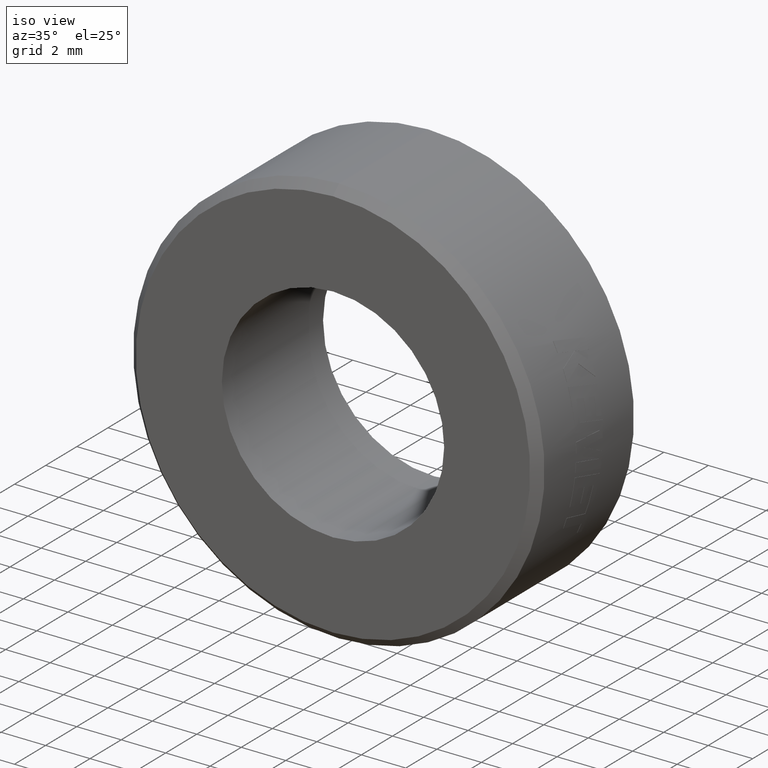
[diagram: clean part render]
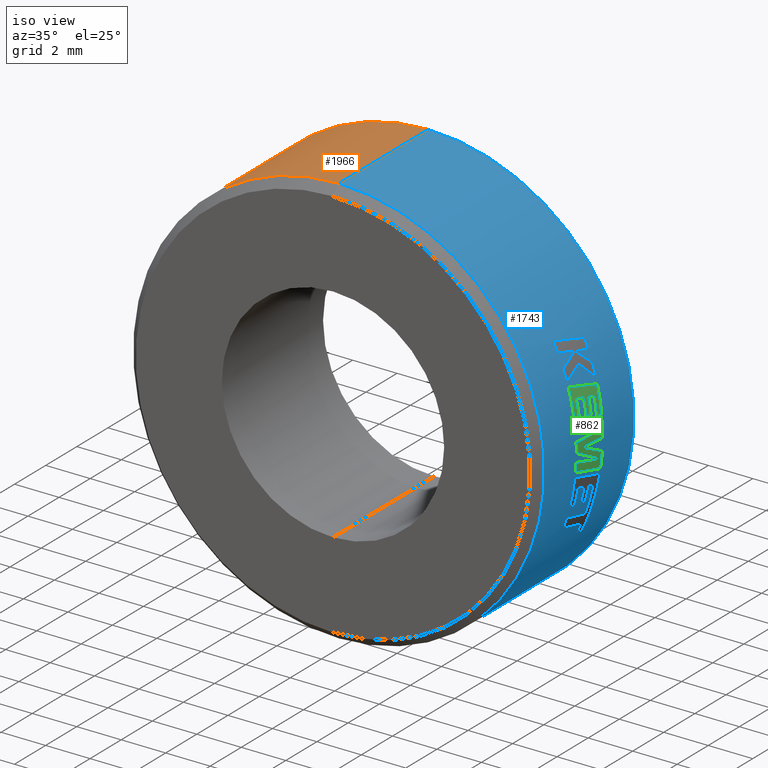
[diagram: same view with three faces highlighted in distinct colors, each labeled with its STEP entity id]
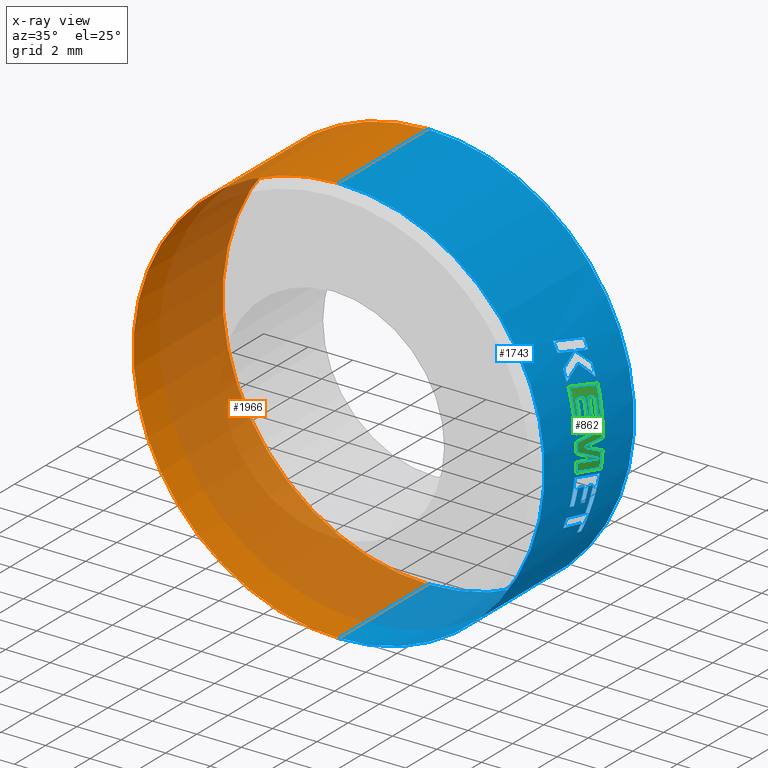
[diagram: x-ray of the same camera — body ghosted, the three highlighted faces saturated]
A machine part, iso view with three faces highlighted in distinct colors.
The next image is the same camera in x-ray (body ghosted, the three faces saturated) — at least one of them is partly hidden behind the body in this view.
Their STEP definitions:

[orange] entity #1966 — the highlighted cylindrical surface (partial cylindrical patch) has radius 9.25 mm, axis along (0, 1, 0).
#36 = CARTESIAN_POINT ( 'NONE',  ( 1.132798289211301501E-15, 2.868900000000007999, -9.250000000000000000 ) ) ;
#74 = CARTESIAN_POINT ( 'NONE',  ( 0.000000000000000000, 2.868900000000007999, 9.250000000000000000 ) ) ;
#78 = DIRECTION ( 'NONE',  ( 0.000000000000000000, 0.000000000000000000, 1.000000000000000000 ) ) ;
#95 = EDGE_CURVE ( 'NONE', #2081, #1474, #1947, .T. ) ;
#308 = CARTESIAN_POINT ( 'NONE',  ( 0.000000000000000000, -3.250000000000000000, 9.250000000000000000 ) ) ;
#311 = CARTESIAN_POINT ( 'NONE',  ( 0.000000000000000000, -2.868899999999990680, 0.000000000000000000 ) ) ;
#346 = ORIENTED_EDGE ( 'NONE', *, *, #533, .F. ) ;
#466 = DIRECTION ( 'NONE',  ( 0.000000000000000000, 0.000000000000000000, 1.000000000000000000 ) ) ;
#469 = FACE_OUTER_BOUND ( 'NONE', #2407, .T. ) ;
#533 = EDGE_CURVE ( 'NONE', #2081, #2295, #654, .T. ) ;
#539 = ORIENTED_EDGE ( 'NONE', *, *, #2083, .T. ) ;
#654 = LINE ( 'NONE', #1252, #2075 ) ;
#872 = AXIS2_PLACEMENT_3D ( 'NONE', #311, #1463, #1241 ) ;
#915 = VERTEX_POINT ( 'NONE', #74 ) ;
#1066 = DIRECTION ( 'NONE',  ( 0.000000000000000000, 1.000000000000000000, 0.000000000000000000 ) ) ;
#1235 = AXIS2_PLACEMENT_3D ( 'NONE', #2001, #1420, #78 ) ;
#1241 = DIRECTION ( 'NONE',  ( 0.000000000000000000, 0.000000000000000000, 1.000000000000000000 ) ) ;
#1252 = CARTESIAN_POINT ( 'NONE',  ( 1.132798289211301501E-15, -3.250000000000000000, -9.250000000000000000 ) ) ;
#1320 = ORIENTED_EDGE ( 'NONE', *, *, #95, .T. ) ;
#1336 = ORIENTED_EDGE ( 'NONE', *, *, #1970, .T. ) ;
#1391 = CIRCLE ( 'NONE', #1716, 9.250000000000000000 ) ;
#1405 = CARTESIAN_POINT ( 'NONE',  ( 1.132798289211301501E-15, -2.868899999999990680, -9.250000000000000000 ) ) ;
#1420 = DIRECTION ( 'NONE',  ( 0.000000000000000000, 1.000000000000000000, 0.000000000000000000 ) ) ;
#1428 = VECTOR ( 'NONE', #1066, 1000.000000000000000 ) ;
#1463 = DIRECTION ( 'NONE',  ( -0.000000000000000000, 1.000000000000000000, -0.000000000000000000 ) ) ;
#1474 = VERTEX_POINT ( 'NONE', #2114 ) ;
#1596 = DIRECTION ( 'NONE',  ( 0.000000000000000000, -1.000000000000000000, 0.000000000000000000 ) ) ;
#1716 = AXIS2_PLACEMENT_3D ( 'NONE', #2359, #1596, #466 ) ;
#1820 = DIRECTION ( 'NONE',  ( 0.000000000000000000, 1.000000000000000000, 0.000000000000000000 ) ) ;
#1947 = CIRCLE ( 'NONE', #872, 9.250000000000000000 ) ;
#1966 = ADVANCED_FACE ( 'NONE', ( #469 ), #2375, .T. ) ;
#1970 = EDGE_CURVE ( 'NONE', #1474, #915, #2186, .T. ) ;
#2001 = CARTESIAN_POINT ( 'NONE',  ( 0.000000000000000000, -3.250000000000000000, 0.000000000000000000 ) ) ;
#2075 = VECTOR ( 'NONE', #1820, 1000.000000000000000 ) ;
#2081 = VERTEX_POINT ( 'NONE', #1405 ) ;
#2083 = EDGE_CURVE ( 'NONE', #915, #2295, #1391, .T. ) ;
#2114 = CARTESIAN_POINT ( 'NONE',  ( 0.000000000000000000, -2.868899999999990680, 9.250000000000000000 ) ) ;
#2186 = LINE ( 'NONE', #308, #1428 ) ;
#2295 = VERTEX_POINT ( 'NONE', #36 ) ;
#2359 = CARTESIAN_POINT ( 'NONE',  ( 0.000000000000000000, 2.868900000000007999, 0.000000000000000000 ) ) ;
#2375 = CYLINDRICAL_SURFACE ( 'NONE', #1235, 9.250000000000000000 ) ;
#2407 = EDGE_LOOP ( 'NONE', ( #346, #1320, #1336, #539 ) ) ;

[blue] entity #1743 — the highlighted cylindrical surface (partial cylindrical patch) has radius 9.25 mm, axis along (0, 1, 0).
#1 = B_SPLINE_CURVE_WITH_KNOTS ( 'NONE', 3,
 ( #2161, #617, #2325, #1374 ),
 .UNSPECIFIED., .F., .F.,
 ( 4, 4 ),
 ( 0.000000000000000000, 1.000000000000000000 ),
 .UNSPECIFIED. ) ;
#3 = DIRECTION ( 'NONE',  ( 0.000000000000000000, -1.000000000000000000, 0.000000000000000000 ) ) ;
#4 = ORIENTED_EDGE ( 'NONE', *, *, #1089, .F. ) ;
#10 = VERTEX_POINT ( 'NONE', #206 ) ;
#12 = ORIENTED_EDGE ( 'NONE', *, *, #790, .F. ) ;
#19 = EDGE_CURVE ( 'NONE', #693, #470, #593, .T. ) ;
#21 = VERTEX_POINT ( 'NONE', #1915 ) ;
#28 = CARTESIAN_POINT ( 'NONE',  ( 8.522197091510102851, 0.5216594178131424009, -3.596478379395146252 ) ) ;
#29 = ORIENTED_EDGE ( 'NONE', *, *, #2335, .F. ) ;
#34 = VERTEX_POINT ( 'NONE', #2136 ) ;
#36 = CARTESIAN_POINT ( 'NONE',  ( 1.132798289211301501E-15, 2.868900000000007999, -9.250000000000000000 ) ) ;
#39 = DIRECTION ( 'NONE',  ( 0.9622223831123732918, -4.688441826964344298E-17, -0.2722647341055122183 ) ) ;
#54 = VERTEX_POINT ( 'NONE', #586 ) ;
#55 = DIRECTION ( 'NONE',  ( 0.9648208807313275459, -4.688441826964343682E-17, -0.2629080982108113473 ) ) ;
#64 = CIRCLE ( 'NONE', #1842, 9.250000000000000000 ) ;
#65 = CARTESIAN_POINT ( 'NONE',  ( 8.710064056604874594, 0.6083065348099186975, 3.123357086501937996 ) ) ;
#66 = CARTESIAN_POINT ( 'NONE',  ( 8.900557043789451228, 0.2098482682436771662, -2.518448790475987575 ) ) ;
#69 = DIRECTION ( 'NONE',  ( 0.9965108243449705139, -4.688441826964342449E-17, 0.08346362658851712302 ) ) ;
#74 = CARTESIAN_POINT ( 'NONE',  ( 0.000000000000000000, 2.868900000000007999, 9.250000000000000000 ) ) ;
#82 = DIRECTION ( 'NONE',  ( 0.000000000000000000, 1.000000000000000000, 0.000000000000000000 ) ) ;
#84 = CARTESIAN_POINT ( 'NONE',  ( 8.208309440058368267, -0.8510120597978302337, 4.264522967020893063 ) ) ;
#86 = AXIS2_PLACEMENT_3D ( 'NONE', #1828, #2462, #1286 ) ;
#89 = CARTESIAN_POINT ( 'NONE',  ( 9.192281473663564739, -0.8510120597978302337, -1.031727342344670451 ) ) ;
#90 = CARTESIAN_POINT ( 'NONE',  ( 0.000000000000000000, 0.8501155299763413220, 0.000000000000000000 ) ) ;
#93 = EDGE_CURVE ( 'NONE', #1135, #522, #1958, .T. ) ;
#97 = EDGE_CURVE ( 'NONE', #153, #1566, #240, .T. ) ;
#105 = DIRECTION ( 'NONE',  ( 0.000000000000000000, 1.000000000000000000, 0.000000000000000000 ) ) ;
#121 = CARTESIAN_POINT ( 'NONE',  ( 9.045663137831482459, -0.2455071489731378009, 1.933931451966072856 ) ) ;
#123 = AXIS2_PLACEMENT_3D ( 'NONE', #2002, #1080, #1411 ) ;
#127 = FACE_BOUND ( 'NONE', #199, .T. ) ;
#134 = AXIS2_PLACEMENT_3D ( 'NONE', #1581, #656, #1227 ) ;
#136 = CARTESIAN_POINT ( 'NONE',  ( 8.999604177411839601, 0.5255266894414144518, -2.153403603282518564 ) ) ;
#139 = CARTESIAN_POINT ( 'NONE',  ( 8.526141050785337683, 0.07265405210956071835, 3.587118451084810200 ) ) ;
#145 = EDGE_CURVE ( 'NONE', #2451, #2312, #321, .T. ) ;
#147 = CARTESIAN_POINT ( 'NONE',  ( 8.743525420086450950, 0.06410225505652523970, -3.021683200702844463 ) ) ;
#148 = ORIENTED_EDGE ( 'NONE', *, *, #1746, .T. ) ;
#150 = ORIENTED_EDGE ( 'NONE', *, *, #2013, .T. ) ;
#153 = VERTEX_POINT ( 'NONE', #1988 ) ;
#156 = ORIENTED_EDGE ( 'NONE', *, *, #169, .F. ) ;
#159 = CARTESIAN_POINT ( 'NONE',  ( 9.249949332661918433, -0.3651918769664208586, 0.03061606093687353411 ) ) ;
#162 = DIRECTION ( 'NONE',  ( -0.000000000000000000, 1.000000000000000000, -0.000000000000000000 ) ) ;
#168 = EDGE_CURVE ( 'NONE', #470, #1135, #2150, .T. ) ;
#169 = EDGE_CURVE ( 'NONE', #2417, #54, #2087, .T. ) ;
#170 = ORIENTED_EDGE ( 'NONE', *, *, #2166, .F. ) ;
#171 = CARTESIAN_POINT ( 'NONE',  ( 8.752334594272255686, -0.2352346559286594974, 2.995901609691601131 ) ) ;
#175 = EDGE_CURVE ( 'NONE', #1670, #2093, #1513, .T. ) ;
#178 = EDGE_CURVE ( 'NONE', #850, #1884, #1822, .T. ) ;
#179 = AXIS2_PLACEMENT_3D ( 'NONE', #2033, #1665, #1838 ) ;
#181 = DIRECTION ( 'NONE',  ( 0.000000000000000000, 0.000000000000000000, 1.000000000000000000 ) ) ;
#195 = B_SPLINE_CURVE_WITH_KNOTS ( 'NONE', 3,
 ( #1686, #2077, #171, #2094 ),
 .UNSPECIFIED., .F., .F.,
 ( 4, 4 ),
 ( 0.000000000000000000, 1.000000000000000000 ),
 .UNSPECIFIED. ) ;
#199 = EDGE_LOOP ( 'NONE', ( #1871, #328, #2260, #932, #571, #911, #1941, #170, #1861, #29, #515, #1254, #1782, #1836, #579, #2200, #653, #12 ) ) ;
#205 = ORIENTED_EDGE ( 'NONE', *, *, #2231, .F. ) ;
#206 = CARTESIAN_POINT ( 'NONE',  ( 9.249949631532460970, -0.8510120597978302337, -0.03052563041945890662 ) ) ;
#208 = CARTESIAN_POINT ( 'NONE',  ( 9.249065934055501259, -0.3437577531277549170, -0.2983057561379457989 ) ) ;
#210 = ORIENTED_EDGE ( 'NONE', *, *, #97, .F. ) ;
#215 = DIRECTION ( 'NONE',  ( 0.9999945547602659968, -4.688441826964343682E-17, -0.003300068153454994557 ) ) ;
#230 = FACE_BOUND ( 'NONE', #1617, .T. ) ;
#231 = CARTESIAN_POINT ( 'NONE',  ( 9.212863013969164072, -0.8510120597978315660, -0.8280429251186086637 ) ) ;
#235 = CARTESIAN_POINT ( 'NONE',  ( 9.214472341853522153, 0.3909531817257727027, 0.8206206690020497740 ) ) ;
#240 = CIRCLE ( 'NONE', #2267, 9.250000000000000000 ) ;
#259 = CARTESIAN_POINT ( 'NONE',  ( 9.053887970592002787, -0.1045749714777433753, 1.894627302655961021 ) ) ;
#262 = DIRECTION ( 'NONE',  ( 0.000000000000000000, 1.000000000000000000, 0.000000000000000000 ) ) ;
#263 = CARTESIAN_POINT ( 'NONE',  ( 8.945457632199573794, -0.6352103095825278878, -2.354193106182608464 ) ) ;
#267 = CARTESIAN_POINT ( 'NONE',  ( 8.924593146764777885, -0.1045749714812674591, -2.431899908450004144 ) ) ;
#268 = EDGE_CURVE ( 'NONE', #1069, #2074, #476, .T. ) ;
#269 = CARTESIAN_POINT ( 'NONE',  ( 9.212439533801202174, 0.6707502821641235791, -0.8327411578976122719 ) ) ;
#272 = EDGE_CURVE ( 'NONE', #1109, #1282, #1027, .T. ) ;
#277 = EDGE_CURVE ( 'NONE', #2018, #1506, #1311, .T. ) ;
#284 = CARTESIAN_POINT ( 'NONE',  ( 9.178882917455835511, 0.0002517407702182998096, 1.145209539068822835 ) ) ;
#296 = CARTESIAN_POINT ( 'NONE',  ( 9.212863013969164072, -0.8510120597978315660, -0.8280429251186086637 ) ) ;
#301 = CARTESIAN_POINT ( 'NONE',  ( 8.885445964235453076, -0.8510120597978315660, 2.571254560842211934 ) ) ;
#304 = CARTESIAN_POINT ( 'NONE',  ( 0.000000000000000000, -0.8510120597978302337, 0.000000000000000000 ) ) ;
#308 = CARTESIAN_POINT ( 'NONE',  ( 0.000000000000000000, -3.250000000000000000, 9.250000000000000000 ) ) ;
#312 = ORIENTED_EDGE ( 'NONE', *, *, #1305, .T. ) ;
#319 = CARTESIAN_POINT ( 'NONE',  ( 0.000000000000000000, 0.2099051652596647111, 0.000000000000000000 ) ) ;
#320 = ORIENTED_EDGE ( 'NONE', *, *, #145, .F. ) ;
#321 = CIRCLE ( 'NONE', #1621, 9.249999999999998224 ) ;
#328 = ORIENTED_EDGE ( 'NONE', *, *, #1344, .F. ) ;
#334 = AXIS2_PLACEMENT_3D ( 'NONE', #1297, #3, #1111 ) ;
#340 = B_SPLINE_CURVE_WITH_KNOTS ( 'NONE', 3,
 ( #1817, #1263, #121, #2185 ),
 .UNSPECIFIED., .F., .F.,
 ( 4, 4 ),
 ( 0.000000000000000000, 1.000000000000000000 ),
 .UNSPECIFIED. ) ;
#341 = CARTESIAN_POINT ( 'NONE',  ( 8.302882236780785519, 0.7406178341119910025, -4.077454693934662977 ) ) ;
#352 = CARTESIAN_POINT ( 'NONE',  ( 9.110202731028694600, -0.5273094344712742076, -1.602094316685901187 ) ) ;
#358 = EDGE_CURVE ( 'NONE', #1474, #2081, #1748, .T. ) ;
#364 = CARTESIAN_POINT ( 'NONE',  ( 9.077833317040177263, 0.3153749861719239433, 1.776621551779571817 ) ) ;
#373 = AXIS2_PLACEMENT_3D ( 'NONE', #899, #1084, #181 ) ;
#376 = DIRECTION ( 'NONE',  ( 0.9687348322044068150, -4.688441826964343682E-17, -0.2480984177174449801 ) ) ;
#383 = CARTESIAN_POINT ( 'NONE',  ( 0.000000000000000000, 0.2098482682436771662, 0.000000000000000000 ) ) ;
#387 = ORIENTED_EDGE ( 'NONE', *, *, #1307, .F. ) ;
#394 = CARTESIAN_POINT ( 'NONE',  ( 8.585464359364994635, 0.6083066721384475795, 3.443414905863796616 ) ) ;
#407 = CARTESIAN_POINT ( 'NONE',  ( 9.088525610342843564, -0.1045749714812661685, -1.720814408976812482 ) ) ;
#421 = CARTESIAN_POINT ( 'NONE',  ( 9.201824232201294862, -0.06820915568529853368, 0.9520239602289196634 ) ) ;
#433 = CARTESIAN_POINT ( 'NONE',  ( 0.000000000000000000, 0.8501155299763413220, 0.000000000000000000 ) ) ;
#435 = CARTESIAN_POINT ( 'NONE',  ( 8.885445964235453076, -0.8510120597978315660, 2.571254560842211934 ) ) ;
#440 = CARTESIAN_POINT ( 'NONE',  ( 8.860965652410472515, 0.5240646097381639335, -2.654390270250743811 ) ) ;
#441 = AXIS2_PLACEMENT_3D ( 'NONE', #644, #262, #55 ) ;
#444 = CARTESIAN_POINT ( 'NONE',  ( 8.625705978177826694, 0.3664979520612671737, 3.349294214903991929 ) ) ;
#451 = CARTESIAN_POINT ( 'NONE',  ( 9.243822070302222471, 0.6634571195694937140, 0.3380141011755359859 ) ) ;
#457 = EDGE_CURVE ( 'NONE', #2084, #632, #1827, .T. ) ;
#463 = EDGE_CURVE ( 'NONE', #1069, #850, #1625, .T. ) ;
#465 = CIRCLE ( 'NONE', #1854, 9.250000000000000000 ) ;
#470 = VERTEX_POINT ( 'NONE', #851 ) ;
#471 = CARTESIAN_POINT ( 'NONE',  ( 9.071838930642140753, 0.2099051652596647111, 1.806720348168379786 ) ) ;
#472 = DIRECTION ( 'NONE',  ( 0.9102699738092819848, -4.688441826964342449E-17, 0.4140151866553314908 ) ) ;
#475 = CARTESIAN_POINT ( 'NONE',  ( 8.330384028726173895, 0.5216224423916479003, -4.020845922681427709 ) ) ;
#476 = B_SPLINE_CURVE_WITH_KNOTS ( 'NONE', 3,
 ( #1213, #1029, #1783, #89 ),
 .UNSPECIFIED., .F., .F.,
 ( 4, 4 ),
 ( 0.000000000000000000, 1.000000000000000000 ),
 .UNSPECIFIED. ) ;
#479 = DIRECTION ( 'NONE',  ( 0.9662234956567207211, -4.688441826964343682E-17, -0.2577055615249829734 ) ) ;
#482 = B_SPLINE_CURVE_WITH_KNOTS ( 'NONE', 3,
 ( #1841, #147, #925, #1511 ),
 .UNSPECIFIED., .F., .F.,
 ( 4, 4 ),
 ( 0.000000000000000000, 1.000000000000000000 ),
 .UNSPECIFIED. ) ;
#491 = EDGE_CURVE ( 'NONE', #1504, #2451, #1717, .T. ) ;
#513 = CARTESIAN_POINT ( 'NONE',  ( 8.422128861617053985, 0.8501155299763386575, 3.824950383771924756 ) ) ;
#515 = ORIENTED_EDGE ( 'NONE', *, *, #582, .F. ) ;
#516 = CARTESIAN_POINT ( 'NONE',  ( 9.088525610342843564, -0.1045749714812661685, -1.720814408976812482 ) ) ;
#518 = CARTESIAN_POINT ( 'NONE',  ( 9.249934521954159550, 0.8501155299763386575, -0.03480430376612159843 ) ) ;
#520 = CARTESIAN_POINT ( 'NONE',  ( 0.000000000000000000, 0.8501155299763413220, 0.000000000000000000 ) ) ;
#522 = VERTEX_POINT ( 'NONE', #1067 ) ;
#523 = DIRECTION ( 'NONE',  ( 0.000000000000000000, 1.000000000000000000, 0.000000000000000000 ) ) ;
#525 = CARTESIAN_POINT ( 'NONE',  ( 9.096009369415510193, -0.2454864591540566188, -1.681288742734846409 ) ) ;
#527 = ORIENTED_EDGE ( 'NONE', *, *, #358, .T. ) ;
#529 = VERTEX_POINT ( 'NONE', #471 ) ;
#533 = EDGE_CURVE ( 'NONE', #2081, #2295, #654, .T. ) ;
#541 = VERTEX_POINT ( 'NONE', #948 ) ;
#543 = VERTEX_POINT ( 'NONE', #1666 ) ;
#546 = AXIS2_PLACEMENT_3D ( 'NONE', #1107, #523, #376 ) ;
#553 = CARTESIAN_POINT ( 'NONE',  ( 8.621880782087986361, -0.3934548970443720317, -3.353053524484780112 ) ) ;
#556 = AXIS2_PLACEMENT_3D ( 'NONE', #1160, #2285, #2320 ) ;
#563 = CARTESIAN_POINT ( 'NONE',  ( 8.667801737232183612, -0.8510120597978315660, -3.229816255460160601 ) ) ;
#571 = ORIENTED_EDGE ( 'NONE', *, *, #1672, .T. ) ;
#572 = CARTESIAN_POINT ( 'NONE',  ( 8.288915140955474214, 0.8501155299763420992, -4.105652906181802564 ) ) ;
#573 = ORIENTED_EDGE ( 'NONE', *, *, #1572, .F. ) ;
#579 = ORIENTED_EDGE ( 'NONE', *, *, #2152, .F. ) ;
#580 = CARTESIAN_POINT ( 'NONE',  ( 9.201126823264875298, 0.5263146279889936441, 0.9496131750326658461 ) ) ;
#581 = VERTEX_POINT ( 'NONE', #1691 ) ;
#582 = EDGE_CURVE ( 'NONE', #2074, #1092, #1935, .T. ) ;
#583 = VERTEX_POINT ( 'NONE', #2049 ) ;
#585 = ORIENTED_EDGE ( 'NONE', *, *, #19, .F. ) ;
#586 = CARTESIAN_POINT ( 'NONE',  ( 9.186056337619302070, 0.2099051652596634066, 1.085757321911406059 ) ) ;
#587 = CARTESIAN_POINT ( 'NONE',  ( 8.860965652410472515, 0.5240646097381639335, -2.654390270250743811 ) ) ;
#593 = CIRCLE ( 'NONE', #556, 9.250000000000000000 ) ;
#598 = AXIS2_PLACEMENT_3D ( 'NONE', #2308, #1923, #215 ) ;
#610 = EDGE_CURVE ( 'NONE', #529, #153, #659, .T. ) ;
#614 = CARTESIAN_POINT ( 'NONE',  ( 8.798516679357080150, 0.3318080976055838849, 2.866823514853378274 ) ) ;
#617 = CARTESIAN_POINT ( 'NONE',  ( 8.456532966692691389, -0.5431233553468909347, 3.749311638617694342 ) ) ;
#630 = CARTESIAN_POINT ( 'NONE',  ( 8.908709091581942019, 0.1050405216665344088, -2.489638291459627784 ) ) ;
#632 = VERTEX_POINT ( 'NONE', #1785 ) ;
#636 = B_SPLINE_CURVE_WITH_KNOTS ( 'NONE', 3,
 ( #580, #1501, #1735, #2452 ),
 .UNSPECIFIED., .F., .F.,
 ( 4, 4 ),
 ( 0.000000000000000000, 1.000000000000000000 ),
 .UNSPECIFIED. ) ;
#638 = CARTESIAN_POINT ( 'NONE',  ( 9.249949332661918433, -0.3651918769664208586, 0.03061606093687353411 ) ) ;
#639 = CIRCLE ( 'NONE', #1753, 9.250000000000000000 ) ;
#644 = CARTESIAN_POINT ( 'NONE',  ( 0.000000000000000000, -0.1045749714812661685, 0.000000000000000000 ) ) ;
#648 = DIRECTION ( 'NONE',  ( 0.000000000000000000, 1.000000000000000000, 0.000000000000000000 ) ) ;
#649 = CARTESIAN_POINT ( 'NONE',  ( 9.249934521954159550, 0.8501155299763386575, -0.03480430376612159843 ) ) ;
#653 = ORIENTED_EDGE ( 'NONE', *, *, #1569, .F. ) ;
#654 = LINE ( 'NONE', #1252, #2075 ) ;
#655 = CARTESIAN_POINT ( 'NONE',  ( 8.461834170756572959, 0.5216470926702198030, -3.739514053021883999 ) ) ;
#656 = DIRECTION ( 'NONE',  ( 0.000000000000000000, 1.000000000000000000, 0.000000000000000000 ) ) ;
#659 = B_SPLINE_CURVE_WITH_KNOTS ( 'NONE', 3,
 ( #2072, #364, #2433, #1119 ),
 .UNSPECIFIED., .F., .F.,
 ( 4, 4 ),
 ( 0.000000000000000000, 1.000000000000000000 ),
 .UNSPECIFIED. ) ;
#661 = CARTESIAN_POINT ( 'NONE',  ( 8.833597442239048192, 0.8501155299763438755, -2.744094792179700537 ) ) ;
#666 = CARTESIAN_POINT ( 'NONE',  ( 8.663032730082647959, -0.8510120597978302337, 3.242585992308725906 ) ) ;
#670 = B_SPLINE_CURVE_WITH_KNOTS ( 'NONE', 3,
 ( #1220, #990, #804, #435 ),
 .UNSPECIFIED., .F., .F.,
 ( 4, 4 ),
 ( 0.000000000000000000, 1.000000000000000000 ),
 .UNSPECIFIED. ) ;
#673 = DIRECTION ( 'NONE',  ( 0.9959851906993693049, -4.688441826964343682E-17, -0.08951815406687661791 ) ) ;
#693 = VERTEX_POINT ( 'NONE', #301 ) ;
#696 = ORIENTED_EDGE ( 'NONE', *, *, #1441, .F. ) ;
#704 = CARTESIAN_POINT ( 'NONE',  ( 8.619709857956701526, -0.5431233524421360537, 3.358329247870327272 ) ) ;
#705 = CARTESIAN_POINT ( 'NONE',  ( 9.243822070302222471, 0.6634571195694937140, 0.3380141011755359859 ) ) ;
#711 = CARTESIAN_POINT ( 'NONE',  ( 9.186370450027418144, -0.5273715039358648493, 1.083096466092947407 ) ) ;
#713 = ORIENTED_EDGE ( 'NONE', *, *, #940, .F. ) ;
#716 = EDGE_CURVE ( 'NONE', #543, #2018, #2327, .T. ) ;
#724 = AXIS2_PLACEMENT_3D ( 'NONE', #90, #1570, #2004 ) ;
#726 = CARTESIAN_POINT ( 'NONE',  ( 9.232311571499151270, 0.8501155299763413220, -0.5717718485225103953 ) ) ;
#731 = CARTESIAN_POINT ( 'NONE',  ( 0.000000000000000000, -2.868899999999990680, 0.000000000000000000 ) ) ;
#772 = VERTEX_POINT ( 'NONE', #2233 ) ;
#780 = CARTESIAN_POINT ( 'NONE',  ( 8.698791828192735665, 0.5216594178173925567, -3.145396752361656389 ) ) ;
#784 = CARTESIAN_POINT ( 'NONE',  ( 9.236546857714904135, 0.1634959754940475685, -0.5660469255176092673 ) ) ;
#790 = EDGE_CURVE ( 'NONE', #583, #1485, #64, .T. ) ;
#792 = CARTESIAN_POINT ( 'NONE',  ( 9.235239584173058347, -0.3437579398980800116, -0.5422809331990989801 ) ) ;
#804 = CARTESIAN_POINT ( 'NONE',  ( 8.930803455219859188, -0.2839695194281001700, 2.414513357013978734 ) ) ;
#819 = CARTESIAN_POINT ( 'NONE',  ( 0.000000000000000000, 0.8501155299763420992, 0.000000000000000000 ) ) ;
#825 = CARTESIAN_POINT ( 'NONE',  ( 8.937567334824667142, -0.5273094344712728754, -2.383776444106092463 ) ) ;
#830 = CARTESIAN_POINT ( 'NONE',  ( 9.198268966760270615, -0.2839695194815353707, -0.9904173065381214336 ) ) ;
#838 = CARTESIAN_POINT ( 'NONE',  ( 8.532656001025497261, 0.1246889568948476162, 3.571593701439672586 ) ) ;
#844 = CARTESIAN_POINT ( 'NONE',  ( 8.663032730082647959, -0.8510120597978302337, 3.242585992308725906 ) ) ;
#845 = CARTESIAN_POINT ( 'NONE',  ( 9.240330774749153875, -0.8510120597978320101, 0.4228323228227549024 ) ) ;
#846 = DIRECTION ( 'NONE',  ( 0.9370596472683443423, -4.688441826964343682E-17, -0.3491693249146120004 ) ) ;
#850 = VERTEX_POINT ( 'NONE', #661 ) ;
#851 = CARTESIAN_POINT ( 'NONE',  ( 9.187519002030144932, -0.8510120597978293455, 1.073310107720496287 ) ) ;
#858 = CARTESIAN_POINT ( 'NONE',  ( 9.250021509890675731, 0.03991059201458881794, 0.008809346142611796521 ) ) ;
#875 = DIRECTION ( 'NONE',  ( 0.9930871716345193168, -4.688441826964344298E-17, 0.1173791699363682661 ) ) ;
#891 = CARTESIAN_POINT ( 'NONE',  ( 8.860965652410472515, 0.5240646097381639335, -2.654390270250743811 ) ) ;
#895 = CARTESIAN_POINT ( 'NONE',  ( 8.574067080912396221, -0.2352346552461340168, 3.473204149552915787 ) ) ;
#899 = CARTESIAN_POINT ( 'NONE',  ( 0.000000000000000000, -3.250000000000000000, 0.000000000000000000 ) ) ;
#908 = EDGE_CURVE ( 'NONE', #1506, #1504, #1, .T. ) ;
#911 = ORIENTED_EDGE ( 'NONE', *, *, #1098, .F. ) ;
#915 = VERTEX_POINT ( 'NONE', #74 ) ;
#916 = CARTESIAN_POINT ( 'NONE',  ( 8.288915140955474214, 0.8501155299763420992, -4.105652906181802564 ) ) ;
#919 = ORIENTED_EDGE ( 'NONE', *, *, #457, .T. ) ;
#925 = CARTESIAN_POINT ( 'NONE',  ( 8.785619441271750318, -0.3934548970369650678, -2.897015217470488402 ) ) ;
#932 = ORIENTED_EDGE ( 'NONE', *, *, #1826, .F. ) ;
#940 = EDGE_CURVE ( 'NONE', #1538, #1275, #2251, .T. ) ;
#946 = VERTEX_POINT ( 'NONE', #231 ) ;
#948 = CARTESIAN_POINT ( 'NONE',  ( 9.071407106608800675, 0.2098482682436758617, -1.808887256344997807 ) ) ;
#953 = ORIENTED_EDGE ( 'NONE', *, *, #2157, .T. ) ;
#955 = ORIENTED_EDGE ( 'NONE', *, *, #1528, .T. ) ;
#962 = CARTESIAN_POINT ( 'NONE',  ( 9.249949631532460970, -0.8510120597978302337, -0.03052563041945890662 ) ) ;
#968 = CARTESIAN_POINT ( 'NONE',  ( 9.186370450027418144, -0.5273715039358648493, 1.083096466092947407 ) ) ;
#976 = ORIENTED_EDGE ( 'NONE', *, *, #2399, .F. ) ;
#981 = CARTESIAN_POINT ( 'NONE',  ( 9.065405530783424481, 0.3153180891562326615, -1.838984620015507776 ) ) ;
#987 = FACE_OUTER_BOUND ( 'NONE', #2362, .T. ) ;
#990 = CARTESIAN_POINT ( 'NONE',  ( 8.972012546901696695, 0.2830729896066080387, 2.256571728353526041 ) ) ;
#995 = AXIS2_PLACEMENT_3D ( 'NONE', #520, #105, #2187 ) ;
#1004 = VERTEX_POINT ( 'NONE', #825 ) ;
#1014 = DIRECTION ( 'NONE',  ( 0.9308955551724377164, -9.376883653928687363E-17, 0.3652854573620459289 ) ) ;
#1018 = CARTESIAN_POINT ( 'NONE',  ( 0.000000000000000000, -0.8510120597978302337, 0.000000000000000000 ) ) ;
#1023 = CIRCLE ( 'NONE', #1216, 9.250000000000001776 ) ;
#1025 = CARTESIAN_POINT ( 'NONE',  ( 0.000000000000000000, -0.5273094344712728754, 0.000000000000000000 ) ) ;
#1026 = CARTESIAN_POINT ( 'NONE',  ( 9.225553334526521709, 0.1634961622643713863, -0.6876659504401855250 ) ) ;
#1027 = B_SPLINE_CURVE_WITH_KNOTS ( 'NONE', 3,
 ( #2363, #655, #1413, #1368 ),
 .UNSPECIFIED., .F., .F.,
 ( 4, 4 ),
 ( 0.000000000000000000, 1.000000000000000000 ),
 .UNSPECIFIED. ) ;
#1028 = ORIENTED_EDGE ( 'NONE', *, *, #1496, .F. ) ;
#1029 = CARTESIAN_POINT ( 'NONE',  ( 9.151609529798134801, 0.2830729896330303474, -1.355413242053445932 ) ) ;
#1032 = CARTESIAN_POINT ( 'NONE',  ( 9.249949332661918433, -0.3651918769664208586, 0.03061606093687353411 ) ) ;
#1042 = CARTESIAN_POINT ( 'NONE',  ( 8.354744309118597556, 0.2830729896863551920, 3.973323912179567152 ) ) ;
#1046 = B_SPLINE_CURVE_WITH_KNOTS ( 'NONE', 3,
 ( #1959, #1162, #341, #916 ),
 .UNSPECIFIED., .F., .F.,
 ( 4, 4 ),
 ( 0.000000000000000000, 1.000000000000000000 ),
 .UNSPECIFIED. ) ;
#1054 = CARTESIAN_POINT ( 'NONE',  ( 8.785473099125260532, 0.8501155299763386575, 2.894471009449978816 ) ) ;
#1063 = CARTESIAN_POINT ( 'NONE',  ( 8.526141050785337683, 0.07265405210956071835, 3.587118451084810200 ) ) ;
#1066 = DIRECTION ( 'NONE',  ( 0.000000000000000000, 1.000000000000000000, 0.000000000000000000 ) ) ;
#1067 = CARTESIAN_POINT ( 'NONE',  ( 9.243822070302222471, 0.6634571195694937140, 0.3380141011755359859 ) ) ;
#1069 = VERTEX_POINT ( 'NONE', #1575 ) ;
#1077 = CIRCLE ( 'NONE', #598, 9.250000000000000000 ) ;
#1080 = DIRECTION ( 'NONE',  ( 0.000000000000000000, 1.000000000000000000, 0.000000000000000000 ) ) ;
#1081 = DIRECTION ( 'NONE',  ( 0.000000000000000000, 1.000000000000000000, 0.000000000000000000 ) ) ;
#1084 = DIRECTION ( 'NONE',  ( 0.000000000000000000, 1.000000000000000000, 0.000000000000000000 ) ) ;
#1089 = EDGE_CURVE ( 'NONE', #2084, #693, #670, .T. ) ;
#1092 = VERTEX_POINT ( 'NONE', #2360 ) ;
#1093 = CARTESIAN_POINT ( 'NONE',  ( 9.052953319765506990, 0.5262577309738981635, -1.899088252332330917 ) ) ;
#1098 = EDGE_CURVE ( 'NONE', #2093, #34, #1464, .T. ) ;
#1099 = VERTEX_POINT ( 'NONE', #1376 ) ;
#1107 = CARTESIAN_POINT ( 'NONE',  ( 0.000000000000000000, -0.8510120597978302337, 0.000000000000000000 ) ) ;
#1109 = VERTEX_POINT ( 'NONE', #1407 ) ;
#1111 = DIRECTION ( 'NONE',  ( 0.000000000000000000, 0.000000000000000000, 1.000000000000000000 ) ) ;
#1113 = AXIS2_PLACEMENT_3D ( 'NONE', #731, #162, #1300 ) ;
#1119 = CARTESIAN_POINT ( 'NONE',  ( 9.089372414849689719, 0.5263146279889923118, 1.716335953177436258 ) ) ;
#1126 = ORIENTED_EDGE ( 'NONE', *, *, #93, .F. ) ;
#1135 = VERTEX_POINT ( 'NONE', #1199 ) ;
#1138 = B_SPLINE_CURVE_WITH_KNOTS ( 'NONE', 3,
 ( #1186, #235, #421, #968 ),
 .UNSPECIFIED., .F., .F.,
 ( 4, 4 ),
 ( 0.000000000000000000, 1.000000000000000000 ),
 .UNSPECIFIED. ) ;
#1139 = CARTESIAN_POINT ( 'NONE',  ( 8.944459216580726846, 0.8501155299763413220, 2.357784833890507858 ) ) ;
#1141 = CARTESIAN_POINT ( 'NONE',  ( 9.052953319765506990, 0.5262577309738981635, -1.899088252332330917 ) ) ;
#1143 = ORIENTED_EDGE ( 'NONE', *, *, #908, .F. ) ;
#1144 = B_SPLINE_CURVE_WITH_KNOTS ( 'NONE', 3,
 ( #269, #1026, #792, #2316 ),
 .UNSPECIFIED., .F., .F.,
 ( 4, 4 ),
 ( 0.000000000000000000, 1.000000000000000000 ),
 .UNSPECIFIED. ) ;
#1153 = VERTEX_POINT ( 'NONE', #259 ) ;
#1156 = CARTESIAN_POINT ( 'NONE',  ( 9.059254166932998231, 0.4207879100613414192, -1.869052115142695980 ) ) ;
#1158 = CIRCLE ( 'NONE', #86, 9.250000000000001776 ) ;
#1159 = EDGE_CURVE ( 'NONE', #1881, #1326, #1144, .T. ) ;
#1160 = CARTESIAN_POINT ( 'NONE',  ( 0.000000000000000000, -0.8510120597978302337, 0.000000000000000000 ) ) ;
#1162 = CARTESIAN_POINT ( 'NONE',  ( 8.316705439331451899, 0.6311201382559962214, -4.049185208697467786 ) ) ;
#1172 = FACE_BOUND ( 'NONE', #1630, .T. ) ;
#1174 = CARTESIAN_POINT ( 'NONE',  ( 8.916721251828811035, 0.0002327750958738708607, -2.460788210700219469 ) ) ;
#1178 = EDGE_CURVE ( 'NONE', #21, #1153, #340, .T. ) ;
#1179 = DIRECTION ( 'NONE',  ( 0.000000000000000000, 1.000000000000000000, 0.000000000000000000 ) ) ;
#1186 = CARTESIAN_POINT ( 'NONE',  ( 9.224303195699954827, 0.8501155299763413220, 0.6890069330562780259 ) ) ;
#1194 = B_SPLINE_CURVE_WITH_KNOTS ( 'NONE', 3,
 ( #1537, #614, #1756, #1139 ),
 .UNSPECIFIED., .F., .F.,
 ( 4, 4 ),
 ( 0.000000000000000000, 1.000000000000000000 ),
 .UNSPECIFIED. ) ;
#1196 = DIRECTION ( 'NONE',  ( 0.000000000000000000, 1.000000000000000000, 0.000000000000000000 ) ) ;
#1197 = CIRCLE ( 'NONE', #134, 9.249999999999998224 ) ;
#1199 = CARTESIAN_POINT ( 'NONE',  ( 9.217725125190977309, -0.8510120597978302337, 0.7720385459437832942 ) ) ;
#1213 = CARTESIAN_POINT ( 'NONE',  ( 9.124873109469394450, 0.8501155299763386575, -1.516308258924390362 ) ) ;
#1216 = AXIS2_PLACEMENT_3D ( 'NONE', #1992, #82, #1592 ) ;
#1220 = CARTESIAN_POINT ( 'NONE',  ( 9.009015563062444443, 0.8501155299763413220, 2.097650729863925534 ) ) ;
#1223 = VERTEX_POINT ( 'NONE', #1054 ) ;
#1226 = DIRECTION ( 'NONE',  ( 0.9546835375588642592, -4.688441826964344298E-17, 0.2976228202172891413 ) ) ;
#1227 = DIRECTION ( 'NONE',  ( 0.9919005208545825791, -4.688441826964344298E-17, 0.1270171513159068233 ) ) ;
#1252 = CARTESIAN_POINT ( 'NONE',  ( 1.132798289211301501E-15, -3.250000000000000000, -9.250000000000000000 ) ) ;
#1254 = ORIENTED_EDGE ( 'NONE', *, *, #268, .F. ) ;
#1262 = VERTEX_POINT ( 'NONE', #2346 ) ;
#1263 = CARTESIAN_POINT ( 'NONE',  ( 9.037182364536116452, -0.3864393264404707429, 1.973182042829383143 ) ) ;
#1266 = CARTESIAN_POINT ( 'NONE',  ( 0.000000000000000000, 0.5263146279889936441, 0.000000000000000000 ) ) ;
#1272 = CARTESIAN_POINT ( 'NONE',  ( 8.208309440058368267, -0.8510120597978302337, 4.264522967020893063 ) ) ;
#1275 = VERTEX_POINT ( 'NONE', #1032 ) ;
#1276 = CARTESIAN_POINT ( 'NONE',  ( 8.419997257735859719, -0.8510120597978306778, 3.829640476561817053 ) ) ;
#1282 = VERTEX_POINT ( 'NONE', #475 ) ;
#1286 = DIRECTION ( 'NONE',  ( 0.9931211297326940635, -4.688441826964342449E-17, 0.1170915098478853417 ) ) ;
#1289 = DIRECTION ( 'NONE',  ( 0.000000000000000000, 1.000000000000000000, 0.000000000000000000 ) ) ;
#1297 = CARTESIAN_POINT ( 'NONE',  ( 0.000000000000000000, 2.868900000000007999, 0.000000000000000000 ) ) ;
#1300 = DIRECTION ( 'NONE',  ( 0.000000000000000000, 0.000000000000000000, 1.000000000000000000 ) ) ;
#1305 = EDGE_CURVE ( 'NONE', #1656, #2122, #1023, .T. ) ;
#1307 = EDGE_CURVE ( 'NONE', #522, #1262, #2421, .T. ) ;
#1309 = B_SPLINE_CURVE_WITH_KNOTS ( 'NONE', 3,
 ( #1906, #1536, #394, #2113 ),
 .UNSPECIFIED., .F., .F.,
 ( 4, 4 ),
 ( 0.000000000000000000, 1.000000000000000000 ),
 .UNSPECIFIED. ) ;
#1311 = CIRCLE ( 'NONE', #1426, 9.250000000000001776 ) ;
#1316 = ORIENTED_EDGE ( 'NONE', *, *, #1676, .T. ) ;
#1318 = B_SPLINE_CURVE_WITH_KNOTS ( 'NONE', 3,
 ( #563, #553, #1909, #28 ),
 .UNSPECIFIED., .F., .F.,
 ( 4, 4 ),
 ( 0.000000000000000000, 1.000000000000000000 ),
 .UNSPECIFIED. ) ;
#1326 = VERTEX_POINT ( 'NONE', #1604 ) ;
#1344 = EDGE_CURVE ( 'NONE', #2250, #1897, #2334, .T. ) ;
#1345 = AXIS2_PLACEMENT_3D ( 'NONE', #319, #1289, #875 ) ;
#1367 = ORIENTED_EDGE ( 'NONE', *, *, #533, .T. ) ;
#1368 = CARTESIAN_POINT ( 'NONE',  ( 8.330384028726173895, 0.5216224423916479003, -4.020845922681427709 ) ) ;
#1374 = CARTESIAN_POINT ( 'NONE',  ( 8.526141050785337683, 0.07265405210956071835, 3.587118451084810200 ) ) ;
#1376 = CARTESIAN_POINT ( 'NONE',  ( 9.156226137540272703, 0.8501155299763395456, -1.313781914255298888 ) ) ;
#1389 = DIRECTION ( 'NONE',  ( 0.000000000000000000, 1.000000000000000000, 0.000000000000000000 ) ) ;
#1398 = CARTESIAN_POINT ( 'NONE',  ( 9.179381211627870130, 0.2830729896600440165, -1.152405743463875476 ) ) ;
#1401 = CIRCLE ( 'NONE', #334, 9.250000000000000000 ) ;
#1405 = CARTESIAN_POINT ( 'NONE',  ( 1.132798289211301501E-15, -2.868899999999990680, -9.250000000000000000 ) ) ;
#1407 = CARTESIAN_POINT ( 'NONE',  ( 8.522197091510102851, 0.5216594178131424009, -3.596478379395146252 ) ) ;
#1411 = DIRECTION ( 'NONE',  ( 0.9549835072690863180, -9.376883653928687363E-17, -0.2966588964518594995 ) ) ;
#1413 = CARTESIAN_POINT ( 'NONE',  ( 8.397869490388753633, 0.5216347675345704982, -3.881029619640831374 ) ) ;
#1415 = CARTESIAN_POINT ( 'NONE',  ( 8.283437988907339289, -0.2839695195078474343, 4.119916317812082340 ) ) ;
#1422 = CARTESIAN_POINT ( 'NONE',  ( 9.217725125190977309, -0.8510120597978302337, 0.7720385459437832942 ) ) ;
#1423 = CARTESIAN_POINT ( 'NONE',  ( 8.830822722419492621, -0.8510120597978315660, 2.753011087009925362 ) ) ;
#1426 = AXIS2_PLACEMENT_3D ( 'NONE', #2354, #2179, #472 ) ;
#1428 = VECTOR ( 'NONE', #1066, 1000.000000000000000 ) ;
#1441 = EDGE_CURVE ( 'NONE', #10, #1881, #1879, .T. ) ;
#1446 = EDGE_CURVE ( 'NONE', #1535, #581, #1194, .T. ) ;
#1457 = ORIENTED_EDGE ( 'NONE', *, *, #277, .F. ) ;
#1458 = CARTESIAN_POINT ( 'NONE',  ( 8.667801737232183612, -0.8510120597978315660, -3.229816255460160601 ) ) ;
#1459 = ORIENTED_EDGE ( 'NONE', *, *, #1970, .F. ) ;
#1464 = B_SPLINE_CURVE_WITH_KNOTS ( 'NONE', 3,
 ( #1553, #1174, #630, #66 ),
 .UNSPECIFIED., .F., .F.,
 ( 4, 4 ),
 ( 0.000000000000000000, 1.000000000000000000 ),
 .UNSPECIFIED. ) ;
#1474 = VERTEX_POINT ( 'NONE', #2114 ) ;
#1485 = VERTEX_POINT ( 'NONE', #1458 ) ;
#1492 = B_SPLINE_CURVE_WITH_KNOTS ( 'NONE', 3,
 ( #352, #1643, #525, #516 ),
 .UNSPECIFIED., .F., .F.,
 ( 4, 4 ),
 ( 0.000000000000000000, 1.000000000000000000 ),
 .UNSPECIFIED. ) ;
#1496 = EDGE_CURVE ( 'NONE', #1275, #2122, #1673, .T. ) ;
#1498 = EDGE_CURVE ( 'NONE', #1326, #946, #465, .T. ) ;
#1501 = CARTESIAN_POINT ( 'NONE',  ( 9.204273935881731816, 0.6342482619871925298, 0.9191197245665837512 ) ) ;
#1504 = VERTEX_POINT ( 'NONE', #1063 ) ;
#1506 = VERTEX_POINT ( 'NONE', #1276 ) ;
#1507 = CARTESIAN_POINT ( 'NONE',  ( 8.610783885345048461, 0.8501155299763413220, 3.378890480598926160 ) ) ;
#1510 = ORIENTED_EDGE ( 'NONE', *, *, #1894, .F. ) ;
#1511 = CARTESIAN_POINT ( 'NONE',  ( 8.825035590865425661, -0.8510120597978302337, -2.771506236680424617 ) ) ;
#1513 = CIRCLE ( 'NONE', #441, 9.250000000000000000 ) ;
#1514 = CARTESIAN_POINT ( 'NONE',  ( 9.224303195699954827, 0.8501155299763413220, 0.6890069330562780259 ) ) ;
#1523 = CARTESIAN_POINT ( 'NONE',  ( 8.757411025484106659, 0.5224611486971652008, -2.983281688819821476 ) ) ;
#1528 = EDGE_CURVE ( 'NONE', #529, #54, #2107, .T. ) ;
#1531 = EDGE_CURVE ( 'NONE', #1704, #2250, #1761, .T. ) ;
#1533 = CARTESIAN_POINT ( 'NONE',  ( 9.071407106608800675, 0.2098482682436758617, -1.808887256344997807 ) ) ;
#1535 = VERTEX_POINT ( 'NONE', #1996 ) ;
#1536 = CARTESIAN_POINT ( 'NONE',  ( 8.559419537764265229, 0.3664978147327387914, 3.507654723086488069 ) ) ;
#1537 = CARTESIAN_POINT ( 'NONE',  ( 8.709342436835033396, 0.07265405210958066073, 3.116063914290651660 ) ) ;
#1538 = VERTEX_POINT ( 'NONE', #726 ) ;
#1553 = CARTESIAN_POINT ( 'NONE',  ( 8.924593146764777885, -0.1045749714812674591, -2.431899908450004144 ) ) ;
#1566 = VERTEX_POINT ( 'NONE', #2054 ) ;
#1569 = EDGE_CURVE ( 'NONE', #1485, #1109, #1318, .T. ) ;
#1570 = DIRECTION ( 'NONE',  ( 0.000000000000000000, 1.000000000000000000, 0.000000000000000000 ) ) ;
#1572 = EDGE_CURVE ( 'NONE', #2312, #1535, #195, .T. ) ;
#1575 = CARTESIAN_POINT ( 'NONE',  ( 9.124873109469394450, 0.8501155299763386575, -1.516308258924390362 ) ) ;
#1580 = B_SPLINE_CURVE_WITH_KNOTS ( 'NONE', 3,
 ( #296, #830, #1398, #2014 ),
 .UNSPECIFIED., .F., .F.,
 ( 4, 4 ),
 ( 0.000000000000000000, 1.000000000000000000 ),
 .UNSPECIFIED. ) ;
#1581 = CARTESIAN_POINT ( 'NONE',  ( 0.000000000000000000, -0.1045749714777420708, 0.000000000000000000 ) ) ;
#1591 = AXIS2_PLACEMENT_3D ( 'NONE', #1025, #1196, #479 ) ;
#1592 = DIRECTION ( 'NONE',  ( 0.9999929212923417410, -9.376883653928684898E-17, -0.003762627434175284859 ) ) ;
#1604 = CARTESIAN_POINT ( 'NONE',  ( 9.241487477543831375, -0.8510120597978315660, -0.3967482859452737265 ) ) ;
#1609 = CARTESIAN_POINT ( 'NONE',  ( 9.229823132218987425, -0.3461889942410470988, 0.6275948469436026800 ) ) ;
#1617 = EDGE_LOOP ( 'NONE', ( #1143, #1457, #2343, #150, #205, #2309, #148, #2264, #573, #320, #2060 ) ) ;
#1621 = AXIS2_PLACEMENT_3D ( 'NONE', #1651, #1942, #1226 ) ;
#1625 = CIRCLE ( 'NONE', #123, 9.250000000000000000 ) ;
#1627 = EDGE_CURVE ( 'NONE', #1566, #632, #636, .T. ) ;
#1628 = CARTESIAN_POINT ( 'NONE',  ( 0.000000000000000000, -0.8510120597978302337, 0.000000000000000000 ) ) ;
#1630 = EDGE_LOOP ( 'NONE', ( #1904, #2047, #696, #1734, #387, #1126, #1902, #585, #4, #919, #1730, #210, #1652, #955, #156, #976, #1694, #953, #1510, #312, #1028, #713, #2428, #1843 ) ) ;
#1640 = AXIS2_PLACEMENT_3D ( 'NONE', #383, #1695, #39 ) ;
#1643 = CARTESIAN_POINT ( 'NONE',  ( 9.103235281305341431, -0.3863979467984860472, -1.641714255934739741 ) ) ;
#1651 = CARTESIAN_POINT ( 'NONE',  ( 0.000000000000000000, -0.8510120597978302337, 0.000000000000000000 ) ) ;
#1652 = ORIENTED_EDGE ( 'NONE', *, *, #610, .F. ) ;
#1656 = VERTEX_POINT ( 'NONE', #1514 ) ;
#1665 = DIRECTION ( 'NONE',  ( 0.000000000000000000, 1.000000000000000000, 0.000000000000000000 ) ) ;
#1666 = CARTESIAN_POINT ( 'NONE',  ( 8.422128861617053985, 0.8501155299763386575, 3.824950383771924756 ) ) ;
#1670 = VERTEX_POINT ( 'NONE', #407 ) ;
#1672 = EDGE_CURVE ( 'NONE', #541, #34, #1960, .T. ) ;
#1673 = B_SPLINE_CURVE_WITH_KNOTS ( 'NONE', 3,
 ( #159, #858, #2040, #518 ),
 .UNSPECIFIED., .F., .F.,
 ( 4, 4 ),
 ( 0.000000000000000000, 1.000000000000000000 ),
 .UNSPECIFIED. ) ;
#1676 = EDGE_CURVE ( 'NONE', #2295, #915, #1401, .T. ) ;
#1686 = CARTESIAN_POINT ( 'NONE',  ( 8.830822722419492621, -0.8510120597978315660, 2.753011087009925362 ) ) ;
#1691 = CARTESIAN_POINT ( 'NONE',  ( 8.944459216580726846, 0.8501155299763413220, 2.357784833890507858 ) ) ;
#1694 = ORIENTED_EDGE ( 'NONE', *, *, #1178, .F. ) ;
#1695 = DIRECTION ( 'NONE',  ( 0.000000000000000000, 1.000000000000000000, 0.000000000000000000 ) ) ;
#1704 = VERTEX_POINT ( 'NONE', #1141 ) ;
#1708 = CARTESIAN_POINT ( 'NONE',  ( 8.698791828192735665, 0.5216594178173925567, -3.145396752361656389 ) ) ;
#1712 = AXIS2_PLACEMENT_3D ( 'NONE', #1018, #1389, #69 ) ;
#1717 = B_SPLINE_CURVE_WITH_KNOTS ( 'NONE', 3,
 ( #139, #895, #704, #666 ),
 .UNSPECIFIED., .F., .F.,
 ( 4, 4 ),
 ( 0.000000000000000000, 1.000000000000000000 ),
 .UNSPECIFIED. ) ;
#1723 = CARTESIAN_POINT ( 'NONE',  ( 9.212439533801202174, 0.6707502821641235791, -0.8327411578976122719 ) ) ;
#1730 = ORIENTED_EDGE ( 'NONE', *, *, #1627, .F. ) ;
#1734 = ORIENTED_EDGE ( 'NONE', *, *, #1892, .F. ) ;
#1735 = CARTESIAN_POINT ( 'NONE',  ( 9.207269459752494001, 0.7421818959781383285, 0.8886106292117822436 ) ) ;
#1742 = CYLINDRICAL_SURFACE ( 'NONE', #373, 9.250000000000000000 ) ;
#1743 = ADVANCED_FACE ( 'NONE', ( #127, #1172, #230, #987 ), #1742, .T. ) ;
#1746 = EDGE_CURVE ( 'NONE', #1223, #581, #2000, .T. ) ;
#1748 = CIRCLE ( 'NONE', #1113, 9.250000000000000000 ) ;
#1753 = AXIS2_PLACEMENT_3D ( 'NONE', #433, #1768, #1014 ) ;
#1756 = CARTESIAN_POINT ( 'NONE',  ( 8.876985094619392669, 0.5909614844803348088, 2.613753709159708283 ) ) ;
#1761 = B_SPLINE_CURVE_WITH_KNOTS ( 'NONE', 3,
 ( #1093, #136, #2438, #891 ),
 .UNSPECIFIED., .F., .F.,
 ( 4, 4 ),
 ( 0.000000000000000000, 1.000000000000000000 ),
 .UNSPECIFIED. ) ;
#1764 = CARTESIAN_POINT ( 'NONE',  ( 9.182541814865084362, 0.1050784530117017251, 1.115491962763986988 ) ) ;
#1767 = CARTESIAN_POINT ( 'NONE',  ( 9.244730925200361327, 0.4450130167583056795, -0.3712384658760790046 ) ) ;
#1768 = DIRECTION ( 'NONE',  ( 0.000000000000000000, 1.000000000000000000, 0.000000000000000000 ) ) ;
#1782 = ORIENTED_EDGE ( 'NONE', *, *, #463, .T. ) ;
#1783 = CARTESIAN_POINT ( 'NONE',  ( 9.174089463083111795, -0.2839695194545230339, -1.193810942307577116 ) ) ;
#1785 = CARTESIAN_POINT ( 'NONE',  ( 9.210113246827033251, 0.8501155299763386575, 0.8580873968432196630 ) ) ;
#1804 = DIRECTION ( 'NONE',  ( 0.000000000000000000, 1.000000000000000000, 0.000000000000000000 ) ) ;
#1810 = VERTEX_POINT ( 'NONE', #1507 ) ;
#1817 = CARTESIAN_POINT ( 'NONE',  ( 9.028446369892272116, -0.5273715039358635170, 2.012375746718054081 ) ) ;
#1820 = DIRECTION ( 'NONE',  ( 0.000000000000000000, 1.000000000000000000, 0.000000000000000000 ) ) ;
#1822 = CIRCLE ( 'NONE', #2387, 9.250000000000000000 ) ;
#1826 = EDGE_CURVE ( 'NONE', #541, #1704, #1938, .T. ) ;
#1827 = CIRCLE ( 'NONE', #995, 9.250000000000000000 ) ;
#1828 = CARTESIAN_POINT ( 'NONE',  ( 0.000000000000000000, -0.5273715039358635170, 0.000000000000000000 ) ) ;
#1836 = ORIENTED_EDGE ( 'NONE', *, *, #178, .T. ) ;
#1838 = DIRECTION ( 'NONE',  ( 0.9669685639546731215, -9.376883653928688596E-17, 0.2548956577178927985 ) ) ;
#1841 = CARTESIAN_POINT ( 'NONE',  ( 8.698791828192735665, 0.5216594178173925567, -3.145396752361656389 ) ) ;
#1842 = AXIS2_PLACEMENT_3D ( 'NONE', #1628, #648, #846 ) ;
#1843 = ORIENTED_EDGE ( 'NONE', *, *, #1969, .F. ) ;
#1854 = AXIS2_PLACEMENT_3D ( 'NONE', #304, #1804, #673 ) ;
#1861 = ORIENTED_EDGE ( 'NONE', *, *, #2098, .T. ) ;
#1871 = ORIENTED_EDGE ( 'NONE', *, *, #2195, .F. ) ;
#1879 = B_SPLINE_CURVE_WITH_KNOTS ( 'NONE', 3,
 ( #962, #208, #784, #1723 ),
 .UNSPECIFIED., .F., .F.,
 ( 4, 4 ),
 ( 0.000000000000000000, 1.000000000000000000 ),
 .UNSPECIFIED. ) ;
#1881 = VERTEX_POINT ( 'NONE', #1903 ) ;
#1884 = VERTEX_POINT ( 'NONE', #572 ) ;
#1892 = EDGE_CURVE ( 'NONE', #1262, #10, #1077, .T. ) ;
#1894 = EDGE_CURVE ( 'NONE', #1656, #2213, #1138, .T. ) ;
#1897 = VERTEX_POINT ( 'NONE', #780 ) ;
#1902 = ORIENTED_EDGE ( 'NONE', *, *, #168, .F. ) ;
#1903 = CARTESIAN_POINT ( 'NONE',  ( 9.212439533801202174, 0.6707502821641235791, -0.8327411578976122719 ) ) ;
#1904 = ORIENTED_EDGE ( 'NONE', *, *, #1498, .F. ) ;
#1906 = CARTESIAN_POINT ( 'NONE',  ( 8.532656001025497261, 0.1246889568948476162, 3.571593701439672586 ) ) ;
#1909 = CARTESIAN_POINT ( 'NONE',  ( 8.573331183753918339, 0.06410225505968286663, -3.475311291419893589 ) ) ;
#1915 = CARTESIAN_POINT ( 'NONE',  ( 9.028446369892272116, -0.5273715039358635170, 2.012375746718054081 ) ) ;
#1923 = DIRECTION ( 'NONE',  ( 0.000000000000000000, 1.000000000000000000, 0.000000000000000000 ) ) ;
#1935 = CIRCLE ( 'NONE', #546, 9.250000000000000000 ) ;
#1938 = B_SPLINE_CURVE_WITH_KNOTS ( 'NONE', 3,
 ( #1533, #981, #1156, #2329 ),
 .UNSPECIFIED., .F., .F.,
 ( 4, 4 ),
 ( 0.000000000000000000, 1.000000000000000000 ),
 .UNSPECIFIED. ) ;
#1941 = ORIENTED_EDGE ( 'NONE', *, *, #175, .F. ) ;
#1942 = DIRECTION ( 'NONE',  ( 0.000000000000000000, 1.000000000000000000, 0.000000000000000000 ) ) ;
#1957 = CARTESIAN_POINT ( 'NONE',  ( 9.250614338626615307, 0.03991063625161252876, -0.1703004283541819652 ) ) ;
#1958 = B_SPLINE_CURVE_WITH_KNOTS ( 'NONE', 3,
 ( #1422, #1609, #2402, #705 ),
 .UNSPECIFIED., .F., .F.,
 ( 4, 4 ),
 ( 0.000000000000000000, 1.000000000000000000 ),
 .UNSPECIFIED. ) ;
#1959 = CARTESIAN_POINT ( 'NONE',  ( 8.330384028726173895, 0.5216224423916479003, -4.020845922681427709 ) ) ;
#1960 = CIRCLE ( 'NONE', #1640, 9.249999999999998224 ) ;
#1969 = EDGE_CURVE ( 'NONE', #946, #1099, #1580, .T. ) ;
#1970 = EDGE_CURVE ( 'NONE', #1474, #915, #2186, .T. ) ;
#1971 = CARTESIAN_POINT ( 'NONE',  ( 9.232311571499151270, 0.8501155299763413220, -0.5717718485225103953 ) ) ;
#1972 = CARTESIAN_POINT ( 'NONE',  ( 9.009015563062444443, 0.8501155299763413220, 2.097650729863925534 ) ) ;
#1977 = CARTESIAN_POINT ( 'NONE',  ( 9.175079817904888912, -0.1045749714777420708, 1.174908649672129934 ) ) ;
#1984 = CARTESIAN_POINT ( 'NONE',  ( 8.785473099125260532, 0.8501155299763386575, 2.894471009449978816 ) ) ;
#1988 = CARTESIAN_POINT ( 'NONE',  ( 9.089372414849689719, 0.5263146279889923118, 1.716335953177436258 ) ) ;
#1989 = CARTESIAN_POINT ( 'NONE',  ( 8.953201047142405500, -0.7431111846865782189, -2.324570592630709420 ) ) ;
#1992 = CARTESIAN_POINT ( 'NONE',  ( 0.000000000000000000, 0.8501155299763413220, 0.000000000000000000 ) ) ;
#1996 = CARTESIAN_POINT ( 'NONE',  ( 8.709342436835033396, 0.07265405210958066073, 3.116063914290651660 ) ) ;
#2000 = CIRCLE ( 'NONE', #179, 9.249999999999998224 ) ;
#2002 = CARTESIAN_POINT ( 'NONE',  ( 0.000000000000000000, 0.8501155299763420992, 0.000000000000000000 ) ) ;
#2004 = DIRECTION ( 'NONE',  ( 0.9898622851394891509, -9.376883653928684898E-17, -0.1420304772167890472 ) ) ;
#2013 = EDGE_CURVE ( 'NONE', #543, #1810, #639, .T. ) ;
#2014 = CARTESIAN_POINT ( 'NONE',  ( 9.156226137540272703, 0.8501155299763395456, -1.313781914255298888 ) ) ;
#2018 = VERTEX_POINT ( 'NONE', #84 ) ;
#2033 = CARTESIAN_POINT ( 'NONE',  ( 0.000000000000000000, 0.8501155299763413220, 0.000000000000000000 ) ) ;
#2040 = CARTESIAN_POINT ( 'NONE',  ( 9.250016572946933024, 0.4450130609953297789, -0.01299762388803818967 ) ) ;
#2047 = ORIENTED_EDGE ( 'NONE', *, *, #1159, .F. ) ;
#2049 = CARTESIAN_POINT ( 'NONE',  ( 8.825035590865425661, -0.8510120597978302337, -2.771506236680424617 ) ) ;
#2054 = CARTESIAN_POINT ( 'NONE',  ( 9.201126823264875298, 0.5263146279889936441, 0.9496131750326658461 ) ) ;
#2060 = ORIENTED_EDGE ( 'NONE', *, *, #491, .F. ) ;
#2072 = CARTESIAN_POINT ( 'NONE',  ( 9.071838930642140753, 0.2099051652596647111, 1.806720348168379786 ) ) ;
#2074 = VERTEX_POINT ( 'NONE', #2174 ) ;
#2075 = VECTOR ( 'NONE', #1820, 1000.000000000000000 ) ;
#2077 = CARTESIAN_POINT ( 'NONE',  ( 8.792839584289257715, -0.5431233517595914773, 2.874849448232650762 ) ) ;
#2081 = VERTEX_POINT ( 'NONE', #1405 ) ;
#2084 = VERTEX_POINT ( 'NONE', #1972 ) ;
#2087 = B_SPLINE_CURVE_WITH_KNOTS ( 'NONE', 3,
 ( #1977, #284, #1764, #2135 ),
 .UNSPECIFIED., .F., .F.,
 ( 4, 4 ),
 ( 0.000000000000000000, 1.000000000000000000 ),
 .UNSPECIFIED. ) ;
#2092 = B_SPLINE_CURVE_WITH_KNOTS ( 'NONE', 3,
 ( #1984, #65, #444, #838 ),
 .UNSPECIFIED., .F., .F.,
 ( 4, 4 ),
 ( 0.000000000000000000, 1.000000000000000000 ),
 .UNSPECIFIED. ) ;
#2093 = VERTEX_POINT ( 'NONE', #267 ) ;
#2094 = CARTESIAN_POINT ( 'NONE',  ( 8.709342436835033396, 0.07265405210958066073, 3.116063914290651660 ) ) ;
#2098 = EDGE_CURVE ( 'NONE', #772, #1004, #2351, .T. ) ;
#2107 = CIRCLE ( 'NONE', #1345, 9.249999999999998224 ) ;
#2113 = CARTESIAN_POINT ( 'NONE',  ( 8.610783885345048461, 0.8501155299763413220, 3.378890480598926160 ) ) ;
#2114 = CARTESIAN_POINT ( 'NONE',  ( 0.000000000000000000, -2.868899999999990680, 9.250000000000000000 ) ) ;
#2119 = EDGE_CURVE ( 'NONE', #1223, #2411, #2092, .T. ) ;
#2122 = VERTEX_POINT ( 'NONE', #649 ) ;
#2135 = CARTESIAN_POINT ( 'NONE',  ( 9.186056337619302070, 0.2099051652596634066, 1.085757321911406059 ) ) ;
#2136 = CARTESIAN_POINT ( 'NONE',  ( 8.900557043789451228, 0.2098482682436771662, -2.518448790475987575 ) ) ;
#2147 = CARTESIAN_POINT ( 'NONE',  ( 8.532656001025497261, 0.1246889568948476162, 3.571593701439672586 ) ) ;
#2150 = CIRCLE ( 'NONE', #1712, 9.250000000000001776 ) ;
#2152 = EDGE_CURVE ( 'NONE', #1282, #1884, #1046, .T. ) ;
#2157 = EDGE_CURVE ( 'NONE', #21, #2213, #1158, .T. ) ;
#2159 = CARTESIAN_POINT ( 'NONE',  ( 8.960797197890766341, -0.8510120597978315660, -2.294910363886350613 ) ) ;
#2160 = CARTESIAN_POINT ( 'NONE',  ( 8.811497099095761953, 0.5232628788583911783, -2.819527686820118451 ) ) ;
#2161 = CARTESIAN_POINT ( 'NONE',  ( 8.419997257735859719, -0.8510120597978306778, 3.829640476561817053 ) ) ;
#2166 = EDGE_CURVE ( 'NONE', #772, #1670, #1492, .T. ) ;
#2170 = CARTESIAN_POINT ( 'NONE',  ( 8.937567334824667142, -0.5273094344712728754, -2.383776444106092463 ) ) ;
#2171 = CARTESIAN_POINT ( 'NONE',  ( 9.242788047483820435, 0.1586340597800406649, 0.3662919834198213320 ) ) ;
#2174 = CARTESIAN_POINT ( 'NONE',  ( 9.192281473663564739, -0.8510120597978302337, -1.031727342344670451 ) ) ;
#2179 = DIRECTION ( 'NONE',  ( 0.000000000000000000, 1.000000000000000000, 0.000000000000000000 ) ) ;
#2185 = CARTESIAN_POINT ( 'NONE',  ( 9.053887970592002787, -0.1045749714777433753, 1.894627302655961021 ) ) ;
#2186 = LINE ( 'NONE', #308, #1428 ) ;
#2187 = DIRECTION ( 'NONE',  ( 0.9956879185758956696, -9.376883653928687363E-17, 0.09276620506413189859 ) ) ;
#2195 = EDGE_CURVE ( 'NONE', #1897, #583, #482, .T. ) ;
#2200 = ORIENTED_EDGE ( 'NONE', *, *, #272, .F. ) ;
#2213 = VERTEX_POINT ( 'NONE', #711 ) ;
#2231 = EDGE_CURVE ( 'NONE', #2411, #1810, #1309, .T. ) ;
#2233 = CARTESIAN_POINT ( 'NONE',  ( 9.110202731028694600, -0.5273094344712742076, -1.602094316685901187 ) ) ;
#2250 = VERTEX_POINT ( 'NONE', #587 ) ;
#2251 = B_SPLINE_CURVE_WITH_KNOTS ( 'NONE', 3,
 ( #1971, #1767, #1957, #638 ),
 .UNSPECIFIED., .F., .F.,
 ( 4, 4 ),
 ( 0.000000000000000000, 1.000000000000000000 ),
 .UNSPECIFIED. ) ;
#2260 = ORIENTED_EDGE ( 'NONE', *, *, #1531, .F. ) ;
#2264 = ORIENTED_EDGE ( 'NONE', *, *, #1446, .F. ) ;
#2267 = AXIS2_PLACEMENT_3D ( 'NONE', #1266, #1081, #2391 ) ;
#2280 = CIRCLE ( 'NONE', #724, 9.250000000000001776 ) ;
#2285 = DIRECTION ( 'NONE',  ( 0.000000000000000000, 1.000000000000000000, 0.000000000000000000 ) ) ;
#2295 = VERTEX_POINT ( 'NONE', #36 ) ;
#2308 = CARTESIAN_POINT ( 'NONE',  ( 0.000000000000000000, -0.8510120597978302337, 0.000000000000000000 ) ) ;
#2309 = ORIENTED_EDGE ( 'NONE', *, *, #2119, .F. ) ;
#2312 = VERTEX_POINT ( 'NONE', #1423 ) ;
#2316 = CARTESIAN_POINT ( 'NONE',  ( 9.241487477543831375, -0.8510120597978315660, -0.3967482859452737265 ) ) ;
#2320 = DIRECTION ( 'NONE',  ( 0.9932452975167725961, -4.688441826964343682E-17, 0.1160335251589723615 ) ) ;
#2325 = CARTESIAN_POINT ( 'NONE',  ( 8.491919061404180624, -0.2352346523413801627, 3.668459926835065499 ) ) ;
#2327 = B_SPLINE_CURVE_WITH_KNOTS ( 'NONE', 3,
 ( #513, #1042, #1415, #1272 ),
 .UNSPECIFIED., .F., .F.,
 ( 4, 4 ),
 ( 0.000000000000000000, 1.000000000000000000 ),
 .UNSPECIFIED. ) ;
#2329 = CARTESIAN_POINT ( 'NONE',  ( 9.052953319765506990, 0.5262577309738981635, -1.899088252332330917 ) ) ;
#2331 = DIRECTION ( 'NONE',  ( 0.8960989341573485367, -9.376883653928687363E-17, -0.4438543682358705444 ) ) ;
#2334 = B_SPLINE_CURVE_WITH_KNOTS ( 'NONE', 3,
 ( #440, #2160, #1523, #1708 ),
 .UNSPECIFIED., .F., .F.,
 ( 4, 4 ),
 ( 0.000000000000000000, 1.000000000000000000 ),
 .UNSPECIFIED. ) ;
#2335 = EDGE_CURVE ( 'NONE', #1092, #1004, #2450, .T. ) ;
#2343 = ORIENTED_EDGE ( 'NONE', *, *, #716, .F. ) ;
#2346 = CARTESIAN_POINT ( 'NONE',  ( 9.240330774749153875, -0.8510120597978320101, 0.4228323228227549024 ) ) ;
#2351 = CIRCLE ( 'NONE', #1591, 9.250000000000000000 ) ;
#2354 = CARTESIAN_POINT ( 'NONE',  ( 0.000000000000000000, -0.8510120597978302337, 0.000000000000000000 ) ) ;
#2355 = CARTESIAN_POINT ( 'NONE',  ( 9.175079817904888912, -0.1045749714777420708, 1.174908649672129934 ) ) ;
#2356 = CARTESIAN_POINT ( 'NONE',  ( 9.241624265963384488, -0.3461890000083784891, 0.3945651208407873201 ) ) ;
#2360 = CARTESIAN_POINT ( 'NONE',  ( 8.960797197890766341, -0.8510120597978315660, -2.294910363886350613 ) ) ;
#2362 = EDGE_LOOP ( 'NONE', ( #527, #1367, #1316, #1459 ) ) ;
#2363 = CARTESIAN_POINT ( 'NONE',  ( 8.522197091510102851, 0.5216594178131424009, -3.596478379395146252 ) ) ;
#2370 = EDGE_CURVE ( 'NONE', #1538, #1099, #2280, .T. ) ;
#2387 = AXIS2_PLACEMENT_3D ( 'NONE', #819, #1179, #2331 ) ;
#2391 = DIRECTION ( 'NONE',  ( 0.9947164133259324137, -4.688441826964343682E-17, 0.1026608837873152352 ) ) ;
#2399 = EDGE_CURVE ( 'NONE', #1153, #2417, #1197, .T. ) ;
#2402 = CARTESIAN_POINT ( 'NONE',  ( 9.238525317966379546, 0.1586340540127097187, 0.4828667448158826536 ) ) ;
#2411 = VERTEX_POINT ( 'NONE', #2147 ) ;
#2417 = VERTEX_POINT ( 'NONE', #2355 ) ;
#2421 = B_SPLINE_CURVE_WITH_KNOTS ( 'NONE', 3,
 ( #451, #2171, #2356, #845 ),
 .UNSPECIFIED., .F., .F.,
 ( 4, 4 ),
 ( 0.000000000000000000, 1.000000000000000000 ),
 .UNSPECIFIED. ) ;
#2428 = ORIENTED_EDGE ( 'NONE', *, *, #2370, .T. ) ;
#2433 = CARTESIAN_POINT ( 'NONE',  ( 9.083677908280025193, 0.4208448070767318860, 1.746492922641756262 ) ) ;
#2438 = CARTESIAN_POINT ( 'NONE',  ( 8.935532721221457919, 0.5247956512706476451, -2.405468232319731392 ) ) ;
#2450 = B_SPLINE_CURVE_WITH_KNOTS ( 'NONE', 3,
 ( #2159, #1989, #263, #2170 ),
 .UNSPECIFIED., .F., .F.,
 ( 4, 4 ),
 ( 0.000000000000000000, 1.000000000000000000 ),
 .UNSPECIFIED. ) ;
#2451 = VERTEX_POINT ( 'NONE', #844 ) ;
#2452 = CARTESIAN_POINT ( 'NONE',  ( 9.210113246827033251, 0.8501155299763386575, 0.8580873968432196630 ) ) ;
#2462 = DIRECTION ( 'NONE',  ( 0.000000000000000000, 1.000000000000000000, 0.000000000000000000 ) ) ;

[green] entity #862 — the highlighted cylindrical surface (partial cylindrical patch) has radius 9.26 mm, axis along (0, 1, 0).
#9 = DIRECTION ( 'NONE',  ( 0.000000000000000000, 1.000000000000000000, 0.000000000000000000 ) ) ;
#30 = CARTESIAN_POINT ( 'NONE',  ( 9.222398927891797271, 0.6707502821641209145, -0.8336414186088529910 ) ) ;
#58 = DIRECTION ( 'NONE',  ( 0.000000000000000000, 1.000000000000000000, 0.000000000000000000 ) ) ;
#63 = CARTESIAN_POINT ( 'NONE',  ( 0.000000000000000000, -0.8510120597978315660, 0.000000000000000000 ) ) ;
#79 = VERTEX_POINT ( 'NONE', #1620 ) ;
#96 = DIRECTION ( 'NONE',  ( 0.000000000000000000, 1.000000000000000000, 0.000000000000000000 ) ) ;
#113 = CARTESIAN_POINT ( 'NONE',  ( 9.227690233434424627, -0.8510120597978324541, 0.7728731822096682746 ) ) ;
#120 = AXIS2_PLACEMENT_3D ( 'NONE', #1005, #438, #2344 ) ;
#124 = DIRECTION ( 'NONE',  ( 0.000000000000000000, 1.000000000000000000, 0.000000000000000000 ) ) ;
#135 = ORIENTED_EDGE ( 'NONE', *, *, #1956, .T. ) ;
#152 = AXIS2_PLACEMENT_3D ( 'NONE', #2388, #2216, #508 ) ;
#155 = DIRECTION ( 'NONE',  ( 0.000000000000000000, 0.000000000000000000, 1.000000000000000000 ) ) ;
#158 = VERTEX_POINT ( 'NONE', #1400 ) ;
#174 = EDGE_CURVE ( 'NONE', #1212, #777, #1482, .T. ) ;
#185 = ORIENTED_EDGE ( 'NONE', *, *, #1445, .T. ) ;
#187 = VERTEX_POINT ( 'NONE', #1190 ) ;
#217 = ORIENTED_EDGE ( 'NONE', *, *, #2196, .T. ) ;
#224 = DIRECTION ( 'NONE',  ( 0.000000000000000000, 0.000000000000000000, 1.000000000000000000 ) ) ;
#236 = ORIENTED_EDGE ( 'NONE', *, *, #247, .F. ) ;
#239 = DIRECTION ( 'NONE',  ( 0.000000000000000000, 0.000000000000000000, 1.000000000000000000 ) ) ;
#246 = B_SPLINE_CURVE_WITH_KNOTS ( 'NONE', 3,
 ( #2324, #1256, #486, #1245 ),
 .UNSPECIFIED., .F., .F.,
 ( 4, 4 ),
 ( 0.000000000000000000, 1.000000000000000000 ),
 .UNSPECIFIED. ) ;
#247 = EDGE_CURVE ( 'NONE', #187, #2208, #992, .T. ) ;
#255 = CARTESIAN_POINT ( 'NONE',  ( 9.252780250778398496, 0.1586340597803851116, 0.3666879747532287848 ) ) ;
#256 = CIRCLE ( 'NONE', #769, 9.259999999999999787 ) ;
#257 = CARTESIAN_POINT ( 'NONE',  ( 9.235526905545967224, 0.1634961681768045683, -0.6884093747821001807 ) ) ;
#275 = CARTESIAN_POINT ( 'NONE',  ( 9.195987209335646284, 0.2099051652596634066, 1.086931113610769550 ) ) ;
#278 = DIRECTION ( 'NONE',  ( 0.000000000000000000, 1.000000000000000000, 0.000000000000000000 ) ) ;
#295 = CARTESIAN_POINT ( 'NONE',  ( 9.184998823113433630, -0.1045749714777442496, 1.176178821185288825 ) ) ;
#306 = CIRCLE ( 'NONE', #1696, 9.259999999999999787 ) ;
#327 = CARTESIAN_POINT ( 'NONE',  ( 9.099198763406281643, 0.5263146279889923118, 1.718191451505197476 ) ) ;
#379 = AXIS2_PLACEMENT_3D ( 'NONE', #63, #999, #1541 ) ;
#392 = CIRCLE ( 'NONE', #152, 9.259999999999999787 ) ;
#406 = ORIENTED_EDGE ( 'NONE', *, *, #174, .T. ) ;
#428 = EDGE_CURVE ( 'NONE', #1124, #1715, #2284, .T. ) ;
#438 = DIRECTION ( 'NONE',  ( 0.000000000000000000, 1.000000000000000000, 0.000000000000000000 ) ) ;
#447 = ORIENTED_EDGE ( 'NONE', *, *, #835, .F. ) ;
#454 = CIRCLE ( 'NONE', #2207, 9.259999999999999787 ) ;
#477 = CARTESIAN_POINT ( 'NONE',  ( 0.000000000000000000, -0.8510120597978315660, 0.000000000000000000 ) ) ;
#486 = CARTESIAN_POINT ( 'NONE',  ( 9.246532304610127539, 0.1634961681768051234, -0.5666589695542749716 ) ) ;
#489 = CARTESIAN_POINT ( 'NONE',  ( 0.000000000000000000, 0.2099051652596625461, 0.000000000000000000 ) ) ;
#495 = EDGE_CURVE ( 'NONE', #767, #1361, #848, .T. ) ;
#497 = CARTESIAN_POINT ( 'NONE',  ( 9.093498100613432555, 0.4208448070792160101, 1.748381023097955067 ) ) ;
#507 = CIRCLE ( 'NONE', #2219, 9.259999999999999787 ) ;
#508 = DIRECTION ( 'NONE',  ( 0.000000000000000000, 0.000000000000000000, 1.000000000000000000 ) ) ;
#517 = ORIENTED_EDGE ( 'NONE', *, *, #1229, .F. ) ;
#530 = EDGE_CURVE ( 'NONE', #1878, #765, #735, .T. ) ;
#534 = EDGE_CURVE ( 'NONE', #158, #2239, #1949, .T. ) ;
#550 = VERTEX_POINT ( 'NONE', #1293 ) ;
#561 = CARTESIAN_POINT ( 'NONE',  ( 9.260021533144611183, 0.03991059201449904253, 0.008818869760068114363 ) ) ;
#562 = EDGE_LOOP ( 'NONE', ( #1674, #217, #185, #236, #1155, #1661, #135, #1692, #406, #447, #754, #1388, #1914, #517, #607, #760, #1851, #2404, #993, #2109, #1540, #2426, #1064, #902 ) ) ;
#568 = EDGE_CURVE ( 'NONE', #1720, #1715, #2017, .T. ) ;
#607 = ORIENTED_EDGE ( 'NONE', *, *, #1048, .T. ) ;
#615 = EDGE_CURVE ( 'NONE', #1296, #79, #2125, .T. ) ;
#621 = CARTESIAN_POINT ( 'NONE',  ( 9.081646324080670851, 0.2099051652596625461, 1.808673559355588267 ) ) ;
#624 = CARTESIAN_POINT ( 'NONE',  ( 9.234275415370978735, 0.8501155299763368811, 0.6897518054163387369 ) ) ;
#652 = CARTESIAN_POINT ( 'NONE',  ( 9.046952291416113567, -0.3864393264498243719, 1.975315212608018900 ) ) ;
#689 = CIRCLE ( 'NONE', #379, 9.259999999999999787 ) ;
#735 = B_SPLINE_CURVE_WITH_KNOTS ( 'NONE', 3,
 ( #1462, #2204, #497, #1224 ),
 .UNSPECIFIED., .F., .F.,
 ( 4, 4 ),
 ( 0.000000000000000000, 1.000000000000000000 ),
 .UNSPECIFIED. ) ;
#751 = CARTESIAN_POINT ( 'NONE',  ( 9.250320321532663925, -0.8510120597978315660, 0.4232894388474301439 ) ) ;
#754 = ORIENTED_EDGE ( 'NONE', *, *, #530, .T. ) ;
#760 = ORIENTED_EDGE ( 'NONE', *, *, #1412, .T. ) ;
#765 = VERTEX_POINT ( 'NONE', #327 ) ;
#767 = VERTEX_POINT ( 'NONE', #1468 ) ;
#769 = AXIS2_PLACEMENT_3D ( 'NONE', #1125, #2300, #1152 ) ;
#777 = VERTEX_POINT ( 'NONE', #275 ) ;
#783 = CARTESIAN_POINT ( 'NONE',  ( 9.196301661324746135, -0.5273715039358648493, 1.084267381191417856 ) ) ;
#789 = EDGE_CURVE ( 'NONE', #765, #1296, #306, .T. ) ;
#802 = CARTESIAN_POINT ( 'NONE',  ( 8.940458377037757032, -0.2839695298731080841, 2.417123644614581846 ) ) ;
#833 = CARTESIAN_POINT ( 'NONE',  ( 9.196301661324746135, -0.5273715039358648493, 1.084267381191417856 ) ) ;
#835 = EDGE_CURVE ( 'NONE', #1878, #777, #454, .T. ) ;
#848 = B_SPLINE_CURVE_WITH_KNOTS ( 'NONE', 3,
 ( #113, #1619, #1834, #2390 ),
 .UNSPECIFIED., .F., .F.,
 ( 4, 4 ),
 ( 0.000000000000000000, 1.000000000000000000 ),
 .UNSPECIFIED. ) ;
#855 = CARTESIAN_POINT ( 'NONE',  ( 9.211073987398133767, 0.5263146279889915347, 0.9506397838705389347 ) ) ;
#862 = ADVANCED_FACE ( 'NONE', ( #1217 ), #1983, .T. ) ;
#874 = AXIS2_PLACEMENT_3D ( 'NONE', #2015, #124, #1797 ) ;
#878 = CARTESIAN_POINT ( 'NONE',  ( 9.018755039346833868, 0.8501155299763368811, 2.099918460382697027 ) ) ;
#884 = CARTESIAN_POINT ( 'NONE',  ( 9.217223264573911834, 0.7421818959805563942, 0.8895712893507859986 ) ) ;
#902 = ORIENTED_EDGE ( 'NONE', *, *, #428, .T. ) ;
#903 = CARTESIAN_POINT ( 'NONE',  ( 9.242292448873744348, 0.8501155299763368811, -0.5723899802506429157 ) ) ;
#904 = EDGE_CURVE ( 'NONE', #2262, #767, #1530, .T. ) ;
#961 = B_SPLINE_CURVE_WITH_KNOTS ( 'NONE', 3,
 ( #1215, #255, #2366, #1009 ),
 .UNSPECIFIED., .F., .F.,
 ( 4, 4 ),
 ( 0.000000000000000000, 1.000000000000000000 ),
 .UNSPECIFIED. ) ;
#973 = CARTESIAN_POINT ( 'NONE',  ( 9.259949277886418528, -0.3651918769664217468, 0.03064915938112961619 ) ) ;
#975 = EDGE_CURVE ( 'NONE', #550, #2460, #1237, .T. ) ;
#979 = CARTESIAN_POINT ( 'NONE',  ( 9.018755039346833868, 0.8501155299763368811, 2.099918460382697027 ) ) ;
#983 = AXIS2_PLACEMENT_3D ( 'NONE', #2085, #9, #155 ) ;
#988 = CARTESIAN_POINT ( 'NONE',  ( 8.981712020607711011, 0.2830730000516151756, 2.259011262426638300 ) ) ;
#992 = CIRCLE ( 'NONE', #120, 9.259999999999999787 ) ;
#993 = ORIENTED_EDGE ( 'NONE', *, *, #1265, .T. ) ;
#999 = DIRECTION ( 'NONE',  ( 0.000000000000000000, 1.000000000000000000, 0.000000000000000000 ) ) ;
#1005 = CARTESIAN_POINT ( 'NONE',  ( 0.000000000000000000, 0.8501155299763368811, 0.000000000000000000 ) ) ;
#1009 = CARTESIAN_POINT ( 'NONE',  ( 9.250320321532663925, -0.8510120597978315660, 0.4232894388474301439 ) ) ;
#1033 = CARTESIAN_POINT ( 'NONE',  ( 0.000000000000000000, -3.250000000000000000, 0.000000000000000000 ) ) ;
#1038 = CARTESIAN_POINT ( 'NONE',  ( 9.166124760391667792, 0.8501155299763377693, -1.315202219027466590 ) ) ;
#1048 = EDGE_CURVE ( 'NONE', #1987, #1919, #1922, .T. ) ;
#1049 = EDGE_CURVE ( 'NONE', #2460, #1124, #689, .T. ) ;
#1064 = ORIENTED_EDGE ( 'NONE', *, *, #1049, .T. ) ;
#1124 = VERTEX_POINT ( 'NONE', #1564 ) ;
#1125 = CARTESIAN_POINT ( 'NONE',  ( 0.000000000000000000, -0.8510120597978315660, 0.000000000000000000 ) ) ;
#1130 = AXIS2_PLACEMENT_3D ( 'NONE', #477, #2140, #2118 ) ;
#1151 = VERTEX_POINT ( 'NONE', #1961 ) ;
#1152 = DIRECTION ( 'NONE',  ( 0.000000000000000000, 0.000000000000000000, 1.000000000000000000 ) ) ;
#1155 = ORIENTED_EDGE ( 'NONE', *, *, #2340, .T. ) ;
#1182 = CARTESIAN_POINT ( 'NONE',  ( 9.245223627039662162, -0.3437579458105134433, -0.5428671811584836471 ) ) ;
#1190 = CARTESIAN_POINT ( 'NONE',  ( 9.234275415370978735, 0.8501155299763368811, 0.6897518054163387369 ) ) ;
#1195 = CARTESIAN_POINT ( 'NONE',  ( 9.251478274816852476, -0.8510120597978315660, -0.3971772030111584972 ) ) ;
#1205 = CARTESIAN_POINT ( 'NONE',  ( 9.211772150168423323, -0.06820915929846359249, 0.9530531763535883272 ) ) ;
#1212 = VERTEX_POINT ( 'NONE', #295 ) ;
#1215 = CARTESIAN_POINT ( 'NONE',  ( 9.253815391459307094, 0.6634571195694920487, 0.3383795218254554427 ) ) ;
#1217 = FACE_OUTER_BOUND ( 'NONE', #562, .T. ) ;
#1224 = CARTESIAN_POINT ( 'NONE',  ( 9.099198763406281643, 0.5263146279889923118, 1.718191451505197476 ) ) ;
#1229 = EDGE_CURVE ( 'NONE', #1987, #79, #392, .T. ) ;
#1237 = B_SPLINE_CURVE_WITH_KNOTS ( 'NONE', 3,
 ( #30, #257, #1182, #1195 ),
 .UNSPECIFIED., .F., .F.,
 ( 4, 4 ),
 ( 0.000000000000000000, 1.000000000000000000 ),
 .UNSPECIFIED. ) ;
#1245 = CARTESIAN_POINT ( 'NONE',  ( 9.222398927891797271, 0.6707502821641209145, -0.8336414186088529910 ) ) ;
#1256 = CARTESIAN_POINT ( 'NONE',  ( 9.259064924590520107, -0.3437579458105131103, -0.2986281470198718924 ) ) ;
#1265 = EDGE_CURVE ( 'NONE', #1361, #1701, #961, .T. ) ;
#1278 = VERTEX_POINT ( 'NONE', #1982 ) ;
#1293 = CARTESIAN_POINT ( 'NONE',  ( 9.222398927891797271, 0.6707502821641209145, -0.8336414186088529910 ) ) ;
#1296 = VERTEX_POINT ( 'NONE', #1766 ) ;
#1325 = CARTESIAN_POINT ( 'NONE',  ( 9.260016590863630270, 0.4450130609954187633, -0.01301167537332734679 ) ) ;
#1353 = CARTESIAN_POINT ( 'NONE',  ( 9.063675957587237875, -0.1045749714777433753, 1.896675548388564003 ) ) ;
#1361 = VERTEX_POINT ( 'NONE', #2091 ) ;
#1388 = ORIENTED_EDGE ( 'NONE', *, *, #789, .T. ) ;
#1400 = CARTESIAN_POINT ( 'NONE',  ( 9.038206852454317541, -0.5273715039358657375, 2.014551288065856927 ) ) ;
#1404 = DIRECTION ( 'NONE',  ( 0.000000000000000000, 0.000000000000000000, 1.000000000000000000 ) ) ;
#1412 = EDGE_CURVE ( 'NONE', #1919, #2262, #507, .T. ) ;
#1445 = EDGE_CURVE ( 'NONE', #1278, #2208, #2211, .T. ) ;
#1462 = CARTESIAN_POINT ( 'NONE',  ( 9.081646324080670851, 0.2099051652596625461, 1.808673559355588267 ) ) ;
#1468 = CARTESIAN_POINT ( 'NONE',  ( 9.227690233434424627, -0.8510120597978324541, 0.7728731822096682746 ) ) ;
#1473 = AXIS2_PLACEMENT_3D ( 'NONE', #1545, #2133, #224 ) ;
#1482 = B_SPLINE_CURVE_WITH_KNOTS ( 'NONE', 3,
 ( #2319, #1568, #2169, #2146 ),
 .UNSPECIFIED., .F., .F.,
 ( 4, 4 ),
 ( 0.000000000000000000, 1.000000000000000000 ),
 .UNSPECIFIED. ) ;
#1530 = CIRCLE ( 'NONE', #1130, 9.259999999999999787 ) ;
#1540 = ORIENTED_EDGE ( 'NONE', *, *, #1714, .T. ) ;
#1541 = DIRECTION ( 'NONE',  ( 0.000000000000000000, 0.000000000000000000, 1.000000000000000000 ) ) ;
#1545 = CARTESIAN_POINT ( 'NONE',  ( 0.000000000000000000, -0.1045749714777433753, 0.000000000000000000 ) ) ;
#1561 = CARTESIAN_POINT ( 'NONE',  ( 8.895051851764353756, -0.8510120597978315660, 2.574034295502586112 ) ) ;
#1564 = CARTESIAN_POINT ( 'NONE',  ( 9.222822865876157294, -0.8510120597978324541, -0.8289381066592774738 ) ) ;
#1568 = CARTESIAN_POINT ( 'NONE',  ( 9.188806034123278010, 0.0002517407680588672376, 1.146447603435996054 ) ) ;
#1608 = CARTESIAN_POINT ( 'NONE',  ( 9.208213041586667202, -0.2839695298731078621, -0.9914880249717191729 ) ) ;
#1619 = CARTESIAN_POINT ( 'NONE',  ( 9.239801319250583234, -0.3461890000087230468, 0.6282733295112914451 ) ) ;
#1620 = CARTESIAN_POINT ( 'NONE',  ( 9.220070126012792855, 0.8501155299763386575, 0.8590150588938608722 ) ) ;
#1622 = VERTEX_POINT ( 'NONE', #1353 ) ;
#1633 = CARTESIAN_POINT ( 'NONE',  ( 9.222822865876157294, -0.8510120597978324541, -0.8289381066592774738 ) ) ;
#1641 = EDGE_CURVE ( 'NONE', #1701, #1151, #256, .T. ) ;
#1657 = CARTESIAN_POINT ( 'NONE',  ( 9.260615002703785237, 0.03991059201449904253, -0.1704845149616162625 ) ) ;
#1661 = ORIENTED_EDGE ( 'NONE', *, *, #534, .F. ) ;
#1674 = ORIENTED_EDGE ( 'NONE', *, *, #568, .F. ) ;
#1692 = ORIENTED_EDGE ( 'NONE', *, *, #1901, .T. ) ;
#1696 = AXIS2_PLACEMENT_3D ( 'NONE', #1777, #96, #2383 ) ;
#1701 = VERTEX_POINT ( 'NONE', #751 ) ;
#1714 = EDGE_CURVE ( 'NONE', #1151, #550, #246, .T. ) ;
#1715 = VERTEX_POINT ( 'NONE', #2005 ) ;
#1720 = VERTEX_POINT ( 'NONE', #2393 ) ;
#1765 = CARTESIAN_POINT ( 'NONE',  ( 9.251478274816852476, -0.8510120597978315660, -0.3971772030111584972 ) ) ;
#1766 = CARTESIAN_POINT ( 'NONE',  ( 9.211073987398133767, 0.5263146279889915347, 0.9506397838705389347 ) ) ;
#1777 = CARTESIAN_POINT ( 'NONE',  ( 0.000000000000000000, 0.5263146279889923118, 0.000000000000000000 ) ) ;
#1797 = DIRECTION ( 'NONE',  ( 0.000000000000000000, 0.000000000000000000, 1.000000000000000000 ) ) ;
#1806 = CARTESIAN_POINT ( 'NONE',  ( 9.063675957587237875, -0.1045749714777433753, 1.896675548388564003 ) ) ;
#1834 = CARTESIAN_POINT ( 'NONE',  ( 9.248512912965303201, 0.1586340597803852226, 0.4833887612616349361 ) ) ;
#1851 = ORIENTED_EDGE ( 'NONE', *, *, #904, .T. ) ;
#1878 = VERTEX_POINT ( 'NONE', #621 ) ;
#1901 = EDGE_CURVE ( 'NONE', #1622, #1212, #2394, .T. ) ;
#1907 = CARTESIAN_POINT ( 'NONE',  ( 9.259934451167081804, 0.8501155299763386575, -0.03484193004046334807 ) ) ;
#1914 = ORIENTED_EDGE ( 'NONE', *, *, #615, .T. ) ;
#1919 = VERTEX_POINT ( 'NONE', #2282 ) ;
#1922 = B_SPLINE_CURVE_WITH_KNOTS ( 'NONE', 3,
 ( #979, #988, #802, #1561 ),
 .UNSPECIFIED., .F., .F.,
 ( 4, 4 ),
 ( 0.000000000000000000, 1.000000000000000000 ),
 .UNSPECIFIED. ) ;
#1949 = CIRCLE ( 'NONE', #874, 9.259999999999999787 ) ;
#1956 = EDGE_CURVE ( 'NONE', #158, #1622, #2062, .T. ) ;
#1961 = CARTESIAN_POINT ( 'NONE',  ( 9.259949577080060834, -0.8510120597978324541, -0.03055863110099345248 ) ) ;
#1963 = AXIS2_PLACEMENT_3D ( 'NONE', #1033, #278, #2368 ) ;
#1982 = CARTESIAN_POINT ( 'NONE',  ( 9.259949277886418528, -0.3651918769664217468, 0.03064915938112961619 ) ) ;
#1983 = CYLINDRICAL_SURFACE ( 'NONE', #1963, 9.259999999999999787 ) ;
#1987 = VERTEX_POINT ( 'NONE', #878 ) ;
#1995 = B_SPLINE_CURVE_WITH_KNOTS ( 'NONE', 3,
 ( #624, #2345, #1205, #833 ),
 .UNSPECIFIED., .F., .F.,
 ( 4, 4 ),
 ( 0.000000000000000000, 1.000000000000000000 ),
 .UNSPECIFIED. ) ;
#2005 = CARTESIAN_POINT ( 'NONE',  ( 9.166124760391667792, 0.8501155299763377693, -1.315202219027466590 ) ) ;
#2015 = CARTESIAN_POINT ( 'NONE',  ( 0.000000000000000000, -0.5273715039358657375, 0.000000000000000000 ) ) ;
#2017 = CIRCLE ( 'NONE', #983, 9.259999999999999787 ) ;
#2022 = CARTESIAN_POINT ( 'NONE',  ( 9.259934451167081804, 0.8501155299763386575, -0.03484193004046334807 ) ) ;
#2043 = CARTESIAN_POINT ( 'NONE',  ( 9.189304866566995855, 0.2830730000516158418, -1.153651590471426180 ) ) ;
#2062 = B_SPLINE_CURVE_WITH_KNOTS ( 'NONE', 3,
 ( #2361, #652, #2389, #1806 ),
 .UNSPECIFIED., .F., .F.,
 ( 4, 4 ),
 ( 0.000000000000000000, 1.000000000000000000 ),
 .UNSPECIFIED. ) ;
#2085 = CARTESIAN_POINT ( 'NONE',  ( 0.000000000000000000, 0.8501155299763368811, 0.000000000000000000 ) ) ;
#2091 = CARTESIAN_POINT ( 'NONE',  ( 9.253815391459307094, 0.6634571195694920487, 0.3383795218254554427 ) ) ;
#2103 = CARTESIAN_POINT ( 'NONE',  ( 9.197451455005312582, -0.8510120597978315660, 1.074470442972085937 ) ) ;
#2104 = CARTESIAN_POINT ( 'NONE',  ( 0.000000000000000000, -0.8510120597978315660, 0.000000000000000000 ) ) ;
#2109 = ORIENTED_EDGE ( 'NONE', *, *, #1641, .T. ) ;
#2118 = DIRECTION ( 'NONE',  ( 0.000000000000000000, 0.000000000000000000, 1.000000000000000000 ) ) ;
#2125 = B_SPLINE_CURVE_WITH_KNOTS ( 'NONE', 3,
 ( #855, #2380, #884, #2192 ),
 .UNSPECIFIED., .F., .F.,
 ( 4, 4 ),
 ( 0.000000000000000000, 1.000000000000000000 ),
 .UNSPECIFIED. ) ;
#2133 = DIRECTION ( 'NONE',  ( 0.000000000000000000, 1.000000000000000000, 0.000000000000000000 ) ) ;
#2140 = DIRECTION ( 'NONE',  ( 0.000000000000000000, 1.000000000000000000, 0.000000000000000000 ) ) ;
#2146 = CARTESIAN_POINT ( 'NONE',  ( 9.195987209335646284, 0.2099051652596634066, 1.086931113610769550 ) ) ;
#2169 = CARTESIAN_POINT ( 'NONE',  ( 9.192468887097442476, 0.1050784530138611644, 1.116697900020415579 ) ) ;
#2192 = CARTESIAN_POINT ( 'NONE',  ( 9.220070126012792855, 0.8501155299763386575, 0.8590150588938608722 ) ) ;
#2196 = EDGE_CURVE ( 'NONE', #1720, #1278, #2206, .T. ) ;
#2204 = CARTESIAN_POINT ( 'NONE',  ( 9.087647190896296578, 0.3153749861694397083, 1.778542223728151406 ) ) ;
#2206 = B_SPLINE_CURVE_WITH_KNOTS ( 'NONE', 3,
 ( #903, #2259, #1657, #2436 ),
 .UNSPECIFIED., .F., .F.,
 ( 4, 4 ),
 ( 0.000000000000000000, 1.000000000000000000 ),
 .UNSPECIFIED. ) ;
#2207 = AXIS2_PLACEMENT_3D ( 'NONE', #489, #2357, #1404 ) ;
#2208 = VERTEX_POINT ( 'NONE', #2022 ) ;
#2211 = B_SPLINE_CURVE_WITH_KNOTS ( 'NONE', 3,
 ( #973, #561, #1325, #1907 ),
 .UNSPECIFIED., .F., .F.,
 ( 4, 4 ),
 ( 0.000000000000000000, 1.000000000000000000 ),
 .UNSPECIFIED. ) ;
#2216 = DIRECTION ( 'NONE',  ( 0.000000000000000000, 1.000000000000000000, 0.000000000000000000 ) ) ;
#2219 = AXIS2_PLACEMENT_3D ( 'NONE', #2104, #58, #239 ) ;
#2239 = VERTEX_POINT ( 'NONE', #783 ) ;
#2259 = CARTESIAN_POINT ( 'NONE',  ( 9.254725227545623767, 0.4450130609954187633, -0.3716398266799861294 ) ) ;
#2262 = VERTEX_POINT ( 'NONE', #2103 ) ;
#2282 = CARTESIAN_POINT ( 'NONE',  ( 8.895051851764353756, -0.8510120597978315660, 2.574034295502586112 ) ) ;
#2284 = B_SPLINE_CURVE_WITH_KNOTS ( 'NONE', 3,
 ( #1633, #1608, #2043, #1038 ),
 .UNSPECIFIED., .F., .F.,
 ( 4, 4 ),
 ( 0.000000000000000000, 1.000000000000000000 ),
 .UNSPECIFIED. ) ;
#2300 = DIRECTION ( 'NONE',  ( 0.000000000000000000, 1.000000000000000000, 0.000000000000000000 ) ) ;
#2319 = CARTESIAN_POINT ( 'NONE',  ( 9.184998823113433630, -0.1045749714777442496, 1.176178821185288825 ) ) ;
#2324 = CARTESIAN_POINT ( 'NONE',  ( 9.259949577080060834, -0.8510120597978324541, -0.03055863110099345248 ) ) ;
#2340 = EDGE_CURVE ( 'NONE', #187, #2239, #1995, .T. ) ;
#2344 = DIRECTION ( 'NONE',  ( 0.000000000000000000, 0.000000000000000000, 1.000000000000000000 ) ) ;
#2345 = CARTESIAN_POINT ( 'NONE',  ( 9.224433933651889461, 0.3909531853389374145, 0.8215078254452592432 ) ) ;
#2357 = DIRECTION ( 'NONE',  ( 0.000000000000000000, 1.000000000000000000, 0.000000000000000000 ) ) ;
#2361 = CARTESIAN_POINT ( 'NONE',  ( 9.038206852454317541, -0.5273715039358657375, 2.014551288065856927 ) ) ;
#2366 = CARTESIAN_POINT ( 'NONE',  ( 9.251615211115774784, -0.3461890000087233799, 0.3949916777282021507 ) ) ;
#2368 = DIRECTION ( 'NONE',  ( 0.000000000000000000, 0.000000000000000000, 1.000000000000000000 ) ) ;
#2380 = CARTESIAN_POINT ( 'NONE',  ( 9.214224502298831609, 0.6342482619847745751, 0.9201133675127449729 ) ) ;
#2383 = DIRECTION ( 'NONE',  ( 0.000000000000000000, 0.000000000000000000, 1.000000000000000000 ) ) ;
#2388 = CARTESIAN_POINT ( 'NONE',  ( 0.000000000000000000, 0.8501155299763368811, 0.000000000000000000 ) ) ;
#2389 = CARTESIAN_POINT ( 'NONE',  ( 9.055442233116171025, -0.2455071489637838666, 1.936022188668289568 ) ) ;
#2390 = CARTESIAN_POINT ( 'NONE',  ( 9.253815391459307094, 0.6634571195694920487, 0.3383795218254554427 ) ) ;
#2393 = CARTESIAN_POINT ( 'NONE',  ( 9.242292448873744348, 0.8501155299763368811, -0.5723899802506429157 ) ) ;
#2394 = CIRCLE ( 'NONE', #1473, 9.259999999999999787 ) ;
#2404 = ORIENTED_EDGE ( 'NONE', *, *, #495, .T. ) ;
#2426 = ORIENTED_EDGE ( 'NONE', *, *, #975, .T. ) ;
#2436 = CARTESIAN_POINT ( 'NONE',  ( 9.259949277886418528, -0.3651918769664217468, 0.03064915938112961619 ) ) ;
#2460 = VERTEX_POINT ( 'NONE', #1765 ) ;